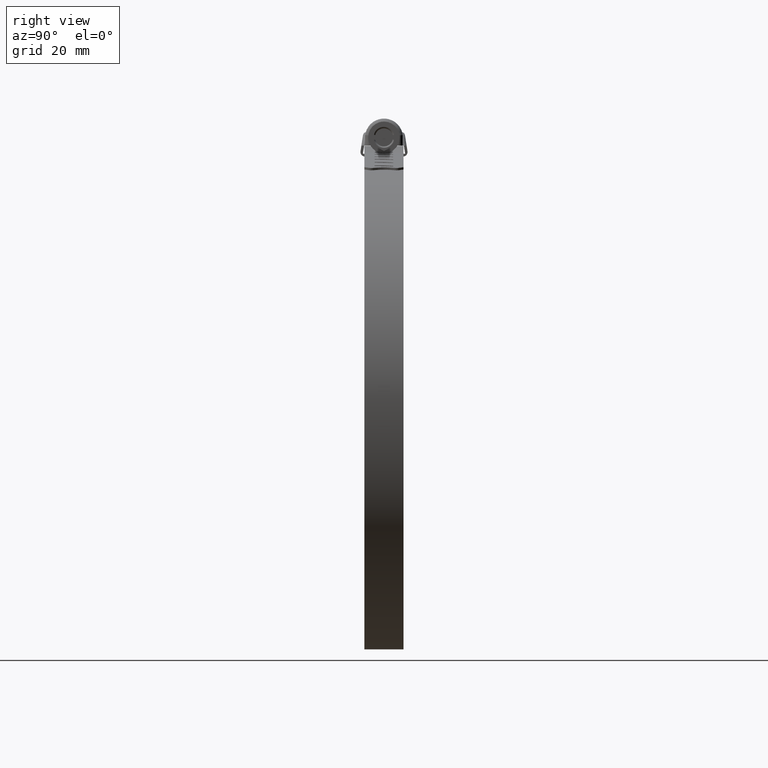
[diagram: clean part render]
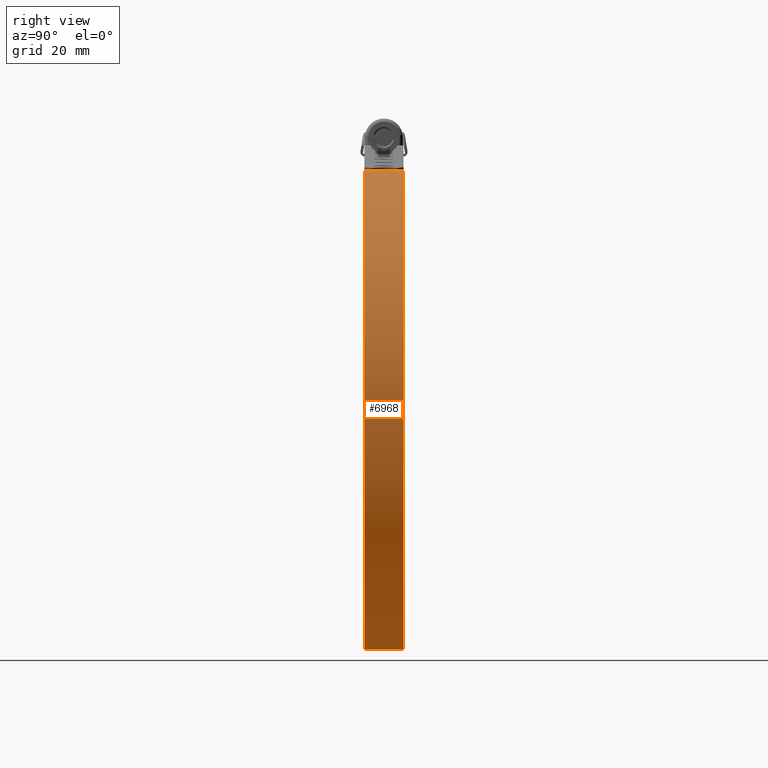
[diagram: same view with one face highlighted and labeled with its STEP entity id]
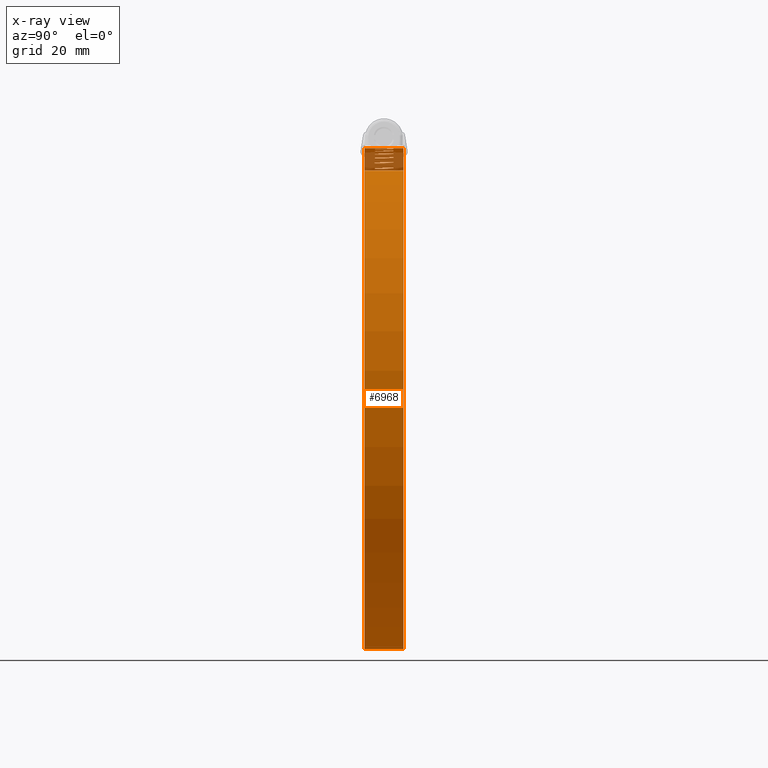
[diagram: x-ray of the same camera — body ghosted, the highlighted face saturated]
A machine part, right view. The second image highlights one B-rep face of the part: STEP entity #6968.
The next image is the same camera in x-ray: the body ghosted, the highlighted face saturated — about 4% of this face is hidden behind the body in this view.
In plain terms, the highlighted face is a freeform B-spline surface patch.
Its self-contained STEP definition (entity closure, byte-faithful):
#3632=CARTESIAN_POINT('',(-9.005521090665718,-0.095494000000085,11.891283086728960));
#3633=VERTEX_POINT('',#3632);
#3639=CARTESIAN_POINT('',(-9.005521090665729,-2.789311000000000,11.891283086729040));
#3640=VERTEX_POINT('',#3639);
#3641=CARTESIAN_POINT('',(-9.005521090665718,-0.095494000000085,11.891283086728960));
#3642=CARTESIAN_POINT('',(-9.005521090665729,-2.789311000000000,11.891283086729040));
#3643=QUASI_UNIFORM_CURVE('',1,(#3641,#3642),.UNSPECIFIED.,.F.,.U.);
#3644=EDGE_CURVE('',#3633,#3640,#3643,.T.);
#3668=CARTESIAN_POINT('',(-8.973533811599591,0.213521000000015,11.894755352408801));
#3669=VERTEX_POINT('',#3668);
#3675=CARTESIAN_POINT('',(-8.973533811599591,0.213521000000015,11.894755352408801));
#3676=CARTESIAN_POINT('',(-9.005521090665718,-0.095494000000085,11.891283086728960));
#3677=QUASI_UNIFORM_CURVE('',1,(#3675,#3676),.UNSPECIFIED.,.F.,.U.);
#3678=EDGE_CURVE('',#3669,#3633,#3677,.T.);
#3696=CARTESIAN_POINT('',(-8.408807953444731,2.910689000000000,11.954000164689500));
#3697=VERTEX_POINT('',#3696);
#3703=CARTESIAN_POINT('',(-8.408807953444731,2.910689000000000,11.954000164689500));
#3704=CARTESIAN_POINT('',(-8.973533811599591,0.213521000000015,11.894755352408801));
#3705=QUASI_UNIFORM_CURVE('',1,(#3703,#3704),.UNSPECIFIED.,.F.,.U.);
#3706=EDGE_CURVE('',#3697,#3669,#3705,.T.);
#3737=CARTESIAN_POINT('',(-7.818189438219370,2.848222999999960,12.011802170090560));
#3738=VERTEX_POINT('',#3737);
#3744=CARTESIAN_POINT('',(-8.079022681245414,3.209040462578904,11.986798964499490));
#3745=VERTEX_POINT('',#3744);
#3746=CARTESIAN_POINT('',(-7.818189438219370,2.848222999999960,12.011802170090560));
#3747=CARTESIAN_POINT('',(-7.807261453522706,2.899407474779917,12.012961290092010));
#3748=CARTESIAN_POINT('',(-7.813483438245870,3.018589940913636,12.012550937718959));
#3749=CARTESIAN_POINT('',(-7.916300446553213,3.160854869627151,12.002695065055880));
#3750=CARTESIAN_POINT('',(-8.027209843027977,3.203648514802569,11.991877231846869));
#3751=CARTESIAN_POINT('',(-8.079022681245414,3.209040462578904,11.986798964499490));
#3752=B_SPLINE_CURVE_WITH_KNOTS('',3,(#3746,#3747,#3748,#3749,#3750,#3751),.UNSPECIFIED.,.F.,.U.,(4,1,1,4),(0.000002011996664,0.157180377981874,0.345756693231996,0.502935059217433),.UNSPECIFIED.);
#3753=EDGE_CURVE('',#3738,#3745,#3752,.T.);
#3755=CARTESIAN_POINT('',(-8.079022681245414,3.209040462578904,11.986798964499490));
#3756=CARTESIAN_POINT('',(-8.151722523079309,3.217216449762999,11.979695212806231));
#3757=CARTESIAN_POINT('',(-8.269599591275963,3.184586906626809,11.968098471597020));
#3758=CARTESIAN_POINT('',(-8.383639370590444,3.057197547021002,11.956715174539809));
#3759=CARTESIAN_POINT('',(-8.408932174650282,2.963059668692534,11.954077672685560));
#3760=CARTESIAN_POINT('',(-8.408807953444731,2.910689000000000,11.954000164689500));
#3761=B_SPLINE_CURVE_WITH_KNOTS('',3,(#3755,#3756,#3757,#3758,#3759,#3760),.UNSPECIFIED.,.F.,.U.,(4,1,1,4),(0.000002009660828,0.220066440936311,0.345756148985025,0.502934268162541),.UNSPECIFIED.);
#3762=EDGE_CURVE('',#3745,#3697,#3761,.T.);
#3795=CARTESIAN_POINT('',(-8.408807953444660,-2.789311000000000,11.954000164689839));
#3796=VERTEX_POINT('',#3795);
#3802=CARTESIAN_POINT('',(-8.408807953444660,-2.789311000000000,11.954000164689839));
#3803=CARTESIAN_POINT('',(-7.818189438219370,2.848222999999960,12.011802170090560));
#3804=QUASI_UNIFORM_CURVE('',1,(#3802,#3803),.UNSPECIFIED.,.F.,.U.);
#3805=EDGE_CURVE('',#3796,#3738,#3804,.T.);
#3835=CARTESIAN_POINT('',(-8.707222253225842,-3.089310998482472,11.923178751419909));
#3836=VERTEX_POINT('',#3835);
#3837=CARTESIAN_POINT('',(-9.005521090665729,-2.789311000000000,11.891283086729040));
#3838=CARTESIAN_POINT('',(-9.005615900475219,-2.838387878512775,11.891361982606639));
#3839=CARTESIAN_POINT('',(-8.978686186525385,-2.946443679791787,11.894388060269909));
#3840=CARTESIAN_POINT('',(-8.863485071285391,-3.062304152095266,11.906705967575370));
#3841=CARTESIAN_POINT('',(-8.756025268982851,-3.089388802909183,11.918049488631050));
#3842=CARTESIAN_POINT('',(-8.707222253225842,-3.089310998482472,11.923178751419909));
#3843=B_SPLINE_CURVE_WITH_KNOTS('',3,(#3837,#3838,#3839,#3840,#3841,#3842),.UNSPECIFIED.,.F.,.U.,(4,1,1,4),(0.000001367597186,0.147335225386582,0.324094470422657,0.471428365476197),.UNSPECIFIED.);
#3844=EDGE_CURVE('',#3640,#3836,#3843,.T.);
#3846=CARTESIAN_POINT('',(-8.707222253225842,-3.089310998482472,11.923178751419909));
#3847=CARTESIAN_POINT('',(-8.668178421075160,-3.089340155004514,11.927282476319951));
#3848=CARTESIAN_POINT('',(-8.580280609149476,-3.071768054595512,11.936489091766100));
#3849=CARTESIAN_POINT('',(-8.450910806054960,-2.975438293921469,11.949911986975710));
#3850=CARTESIAN_POINT('',(-8.408448253410970,-2.858128693499273,11.954162575078950));
#3851=CARTESIAN_POINT('',(-8.408807953444660,-2.789311000000000,11.954000164689839));
#3852=B_SPLINE_CURVE_WITH_KNOTS('',3,(#3846,#3847,#3848,#3849,#3850,#3851),.UNSPECIFIED.,.F.,.U.,(4,1,1,4),(0.000001325429710,0.117858449666799,0.265160414500037,0.471429797483400),.UNSPECIFIED.);
#3853=EDGE_CURVE('',#3836,#3796,#3852,.T.);
#3886=CARTESIAN_POINT('',(-14.044262086994920,-0.095494000000085,11.187048517218100));
#3887=VERTEX_POINT('',#3886);
#3893=CARTESIAN_POINT('',(-14.044262086994941,-2.789311000000000,11.187048517218081));
#3894=VERTEX_POINT('',#3893);
#3895=CARTESIAN_POINT('',(-14.044262086994920,-0.095494000000085,11.187048517218100));
#3896=CARTESIAN_POINT('',(-14.044262086994941,-2.789311000000000,11.187048517218081));
#3897=QUASI_UNIFORM_CURVE('',1,(#3895,#3896),.UNSPECIFIED.,.F.,.U.);
#3898=EDGE_CURVE('',#3887,#3894,#3897,.T.);
#3922=CARTESIAN_POINT('',(-14.012546447400799,0.213521000000015,11.192467083092961));
#3923=VERTEX_POINT('',#3922);
#3929=CARTESIAN_POINT('',(-14.012546447400799,0.213521000000015,11.192467083092961));
#3930=CARTESIAN_POINT('',(-14.044262086994920,-0.095494000000085,11.187048517218100));
#3931=QUASI_UNIFORM_CURVE('',1,(#3929,#3930),.UNSPECIFIED.,.F.,.U.);
#3932=EDGE_CURVE('',#3923,#3887,#3931,.T.);
#3950=CARTESIAN_POINT('',(-13.452490726072581,2.910689000000000,11.286077080734479));
#3951=VERTEX_POINT('',#3950);
#3957=CARTESIAN_POINT('',(-13.452490726072581,2.910689000000000,11.286077080734479));
#3958=CARTESIAN_POINT('',(-14.012546447400799,0.213521000000015,11.192467083092961));
#3959=QUASI_UNIFORM_CURVE('',1,(#3957,#3958),.UNSPECIFIED.,.F.,.U.);
#3960=EDGE_CURVE('',#3951,#3923,#3959,.T.);
#3991=CARTESIAN_POINT('',(-12.866502561445779,2.848222999999960,11.379827671520401));
#3992=VERTEX_POINT('',#3991);
#3998=CARTESIAN_POINT('',(-13.125322888710400,3.209040462578904,11.338947613399140));
#3999=VERTEX_POINT('',#3998);
#4000=CARTESIAN_POINT('',(-12.866502561445779,2.848222999999960,11.379827671520401));
#4001=CARTESIAN_POINT('',(-12.855672046474361,2.899393230125994,11.381650729019540));
#4002=CARTESIAN_POINT('',(-12.861834154075011,3.018605020527343,11.380865071217940));
#4003=CARTESIAN_POINT('',(-12.963899722456480,3.160853024546785,11.364743988335521));
#4004=CARTESIAN_POINT('',(-13.073902436249000,3.203649613320435,11.347181797407339));
#4005=CARTESIAN_POINT('',(-13.125322888710400,3.209040462578904,11.338947613399140));
#4006=B_SPLINE_CURVE_WITH_KNOTS('',3,(#4000,#4001,#4002,#4003,#4004,#4005),.UNSPECIFIED.,.F.,.U.,(4,1,1,4),(0.000002011996712,0.157180377981921,0.345756693232046,0.502935059217494),.UNSPECIFIED.);
#4007=EDGE_CURVE('',#3992,#3999,#4006,.T.);
#4009=CARTESIAN_POINT('',(-13.125322888710400,3.209040462578904,11.338947613399140));
#4010=CARTESIAN_POINT('',(-13.176707455039240,3.214605178164895,11.330734304275889));
#4011=CARTESIAN_POINT('',(-13.293140586566990,3.195972053982962,11.312069715980609));
#4012=CARTESIAN_POINT('',(-13.422084994658780,3.078259316114484,11.291232000176921));
#4013=CARTESIAN_POINT('',(-13.452610188822749,2.963087921146077,11.286148391006281));
#4014=CARTESIAN_POINT('',(-13.452490726072581,2.910689000000000,11.286077080734479));
#4015=B_SPLINE_CURVE_WITH_KNOTS('',3,(#4009,#4010,#4011,#4012,#4013,#4014),.UNSPECIFIED.,.F.,.U.,(4,1,1,4),(0.000002009660718,0.157180129503391,0.345756148984949,0.502934268162437),.UNSPECIFIED.);
#4016=EDGE_CURVE('',#3999,#3951,#4015,.T.);
#4049=CARTESIAN_POINT('',(-13.452490726072501,-2.789311000000000,11.286077080734479));
#4050=VERTEX_POINT('',#4049);
#4056=CARTESIAN_POINT('',(-13.452490726072501,-2.789311000000000,11.286077080734479));
#4057=CARTESIAN_POINT('',(-12.866502561445779,2.848222999999960,11.379827671520401));
#4058=QUASI_UNIFORM_CURVE('',1,(#4056,#4057),.UNSPECIFIED.,.F.,.U.);
#4059=EDGE_CURVE('',#4050,#3992,#4058,.T.);
#4089=CARTESIAN_POINT('',(-13.748466820764380,-3.089310998482472,11.237095398435590));
#4090=VERTEX_POINT('',#4089);
#4091=CARTESIAN_POINT('',(-14.044262086994941,-2.789311000000000,11.187048517218081));
#4092=CARTESIAN_POINT('',(-14.044652244468001,-2.858121000526514,11.187108858144111));
#4093=CARTESIAN_POINT('',(-14.002608261618610,-2.975455833821752,11.194358833784049));
#4094=CARTESIAN_POINT('',(-13.874343159567180,-3.071751812060301,11.215998864489670));
#4095=CARTESIAN_POINT('',(-13.787182755005650,-3.089342466082533,11.230616630426850));
#4096=CARTESIAN_POINT('',(-13.748466820764380,-3.089310998482472,11.237095398435590));
#4097=B_SPLINE_CURVE_WITH_KNOTS('',3,(#4091,#4092,#4093,#4094,#4095,#4096),.UNSPECIFIED.,.F.,.U.,(4,1,1,4),(0.000001367597460,0.206270074267406,0.353571580110242,0.471428365476143),.UNSPECIFIED.);
#4098=EDGE_CURVE('',#3894,#4090,#4097,.T.);
#4100=CARTESIAN_POINT('',(-13.748466820764380,-3.089310998482472,11.237095398435590));
#4101=CARTESIAN_POINT('',(-13.709741719204260,-3.089342691705465,11.243575815819749));
#4102=CARTESIAN_POINT('',(-13.632309817796660,-3.073677862990182,11.256504871905831));
#4103=CARTESIAN_POINT('',(-13.500712745761810,-2.984840226071862,11.278364472591390));
#4104=CARTESIAN_POINT('',(-13.451932345580030,-2.868063236844275,11.286314304666240));
#4105=CARTESIAN_POINT('',(-13.452490726072501,-2.789311000000000,11.286077080734479));
#4106=B_SPLINE_CURVE_WITH_KNOTS('',3,(#4100,#4101,#4102,#4103,#4104,#4105),.UNSPECIFIED.,.F.,.U.,(4,1,1,4),(0.000001325429664,0.117858449666749,0.235715549342106,0.471429797483434),.UNSPECIFIED.);
#4107=EDGE_CURVE('',#4090,#4050,#4106,.T.);
#4140=CARTESIAN_POINT('',(-19.030612323707452,-0.095494000000085,10.176519708217359));
#4141=VERTEX_POINT('',#4140);
#4147=CARTESIAN_POINT('',(-19.030612323707452,-2.789311000000000,10.176519708217540));
#4148=VERTEX_POINT('',#4147);
#4149=CARTESIAN_POINT('',(-19.030612323707452,-0.095494000000085,10.176519708217359));
#4150=CARTESIAN_POINT('',(-19.030612323707452,-2.789311000000000,10.176519708217540));
#4151=QUASI_UNIFORM_CURVE('',1,(#4149,#4150),.UNSPECIFIED.,.F.,.U.);
#4152=EDGE_CURVE('',#4141,#4148,#4151,.T.);
#4176=CARTESIAN_POINT('',(-18.999286635707399,0.213521000000015,10.183864360852599));
#4177=VERTEX_POINT('',#4176);
#4183=CARTESIAN_POINT('',(-18.999286635707399,0.213521000000015,10.183864360852599));
#4184=CARTESIAN_POINT('',(-19.030612323707452,-0.095494000000085,10.176519708217359));
#4185=QUASI_UNIFORM_CURVE('',1,(#4183,#4184),.UNSPECIFIED.,.F.,.U.);
#4186=EDGE_CURVE('',#4177,#4141,#4185,.T.);
#4204=CARTESIAN_POINT('',(-18.445990284836299,2.910689000000000,10.311490340823900));
#4205=VERTEX_POINT('',#4204);
#4211=CARTESIAN_POINT('',(-18.445990284836299,2.910689000000000,10.311490340823900));
#4212=CARTESIAN_POINT('',(-18.999286635707399,0.213521000000015,10.183864360852599));
#4213=QUASI_UNIFORM_CURVE('',1,(#4211,#4212),.UNSPECIFIED.,.F.,.U.);
#4214=EDGE_CURVE('',#4205,#4177,#4213,.T.);
#4245=CARTESIAN_POINT('',(-17.866818442906851,2.848222999999960,10.440839789494779));
#4246=VERTEX_POINT('',#4245);
#4252=CARTESIAN_POINT('',(-18.122660350244111,3.209040462578906,10.384235377941099));
#4253=VERTEX_POINT('',#4252);
#4254=CARTESIAN_POINT('',(-17.866818442906851,2.848222999999960,10.440839789494779));
#4255=CARTESIAN_POINT('',(-17.860460179354259,2.878913726949419,10.442314599664421));
#4256=CARTESIAN_POINT('',(-17.856005452931889,2.963732823551710,10.443456542899799));
#4257=CARTESIAN_POINT('',(-17.897723495514221,3.074899438274182,10.434316334360950));
#4258=CARTESIAN_POINT('',(-17.992903147979970,3.172410881289877,10.413195042675380));
#4259=CARTESIAN_POINT('',(-18.071816893486041,3.203677174961872,10.395598225301660));
#4260=CARTESIAN_POINT('',(-18.122660350244111,3.209040462578906,10.384235377941099));
#4261=B_SPLINE_CURVE_WITH_KNOTS('',3,(#4254,#4255,#4256,#4257,#4258,#4259,#4260),.UNSPECIFIED.,.F.,.U.,(4,1,1,1,4),(0.000002011996262,0.094290169621297,0.251468535537760,0.345756693231922,0.502935059217427),.UNSPECIFIED.);
#4262=EDGE_CURVE('',#4246,#4253,#4261,.T.);
#4264=CARTESIAN_POINT('',(-18.122660350244111,3.209040462578906,10.384235377941099));
#4265=CARTESIAN_POINT('',(-18.173529969062901,3.214651267067050,10.372882130959830));
#4266=CARTESIAN_POINT('',(-18.277905221405781,3.197545758292637,10.349537353969190));
#4267=CARTESIAN_POINT('',(-18.409390135077409,3.088468716778165,10.319976345207930));
#4268=CARTESIAN_POINT('',(-18.446292912723511,2.973595036049047,10.311532579184350));
#4269=CARTESIAN_POINT('',(-18.445990284836299,2.910689000000000,10.311490340823900));
#4270=B_SPLINE_CURVE_WITH_KNOTS('',3,(#4264,#4265,#4266,#4267,#4268,#4269),.UNSPECIFIED.,.F.,.U.,(4,1,1,4),(0.000002009660685,0.157180129503410,0.314306305858774,0.502934268162573),.UNSPECIFIED.);
#4271=EDGE_CURVE('',#4253,#4205,#4270,.T.);
#4304=CARTESIAN_POINT('',(-18.445990284836199,-2.789311000000000,10.311490340823900));
#4305=VERTEX_POINT('',#4304);
#4311=CARTESIAN_POINT('',(-18.445990284836199,-2.789311000000000,10.311490340823900));
#4312=CARTESIAN_POINT('',(-17.866818442906851,2.848222999999960,10.440839789494779));
#4313=QUASI_UNIFORM_CURVE('',1,(#4311,#4312),.UNSPECIFIED.,.F.,.U.);
#4314=EDGE_CURVE('',#4305,#4246,#4313,.T.);
#4344=CARTESIAN_POINT('',(-18.738424064280910,-3.089310998482472,10.244531110917700));
#4345=VERTEX_POINT('',#4344);
#4346=CARTESIAN_POINT('',(-19.030612323707452,-2.789311000000000,10.176519708217540));
#4347=CARTESIAN_POINT('',(-19.031007570900790,-2.858128340064081,10.176555639008310));
#4348=CARTESIAN_POINT('',(-18.989473983154880,-2.975437686346211,10.186361221793801));
#4349=CARTESIAN_POINT('',(-18.862782026371111,-3.071768760031074,10.215788393442031));
#4350=CARTESIAN_POINT('',(-18.776676949033170,-3.089338552511964,10.235699787519620));
#4351=CARTESIAN_POINT('',(-18.738424064280910,-3.089310998482472,10.244531110917700));
#4352=B_SPLINE_CURVE_WITH_KNOTS('',3,(#4346,#4347,#4348,#4349,#4350,#4351),.UNSPECIFIED.,.F.,.U.,(4,1,1,4),(0.000001367597470,0.206270074267385,0.353571580110219,0.471428365476101),.UNSPECIFIED.);
#4353=EDGE_CURVE('',#4148,#4345,#4352,.T.);
#4355=CARTESIAN_POINT('',(-18.738424064280910,-3.089310998482472,10.244531110917700));
#4356=CARTESIAN_POINT('',(-18.700175734856909,-3.089343467343626,10.253361493538470));
#4357=CARTESIAN_POINT('',(-18.614055725823530,-3.071752560121901,10.273211354595871));
#4358=CARTESIAN_POINT('',(-18.487272906360321,-2.975455743188903,10.302303509345400));
#4359=CARTESIAN_POINT('',(-18.445654316548971,-2.858121225010708,10.311695072860710));
#4360=CARTESIAN_POINT('',(-18.445990284836199,-2.789311000000000,10.311490340823900));
#4361=B_SPLINE_CURVE_WITH_KNOTS('',3,(#4355,#4356,#4357,#4358,#4359,#4360),.UNSPECIFIED.,.F.,.U.,(4,1,1,4),(0.000001325429899,0.117858449666897,0.265160414500117,0.471429797483498),.UNSPECIFIED.);
#4362=EDGE_CURVE('',#4345,#4305,#4361,.T.);
#4395=CARTESIAN_POINT('',(-23.945970704141850,-0.095494000000085,8.863466339585321));
#4396=VERTEX_POINT('',#4395);
#4402=CARTESIAN_POINT('',(-23.945970704141899,-2.789311000000000,8.863466339585459));
#4403=VERTEX_POINT('',#4402);
#4404=CARTESIAN_POINT('',(-23.945970704141850,-0.095494000000085,8.863466339585321));
#4405=CARTESIAN_POINT('',(-23.945970704141899,-2.789311000000000,8.863466339585459));
#4406=QUASI_UNIFORM_CURVE('',1,(#4404,#4405),.UNSPECIFIED.,.F.,.U.);
#4407=EDGE_CURVE('',#4396,#4403,#4406,.T.);
#4431=CARTESIAN_POINT('',(-23.915151825181251,0.213521000000015,8.872709680464830));
#4432=VERTEX_POINT('',#4431);
#4438=CARTESIAN_POINT('',(-23.915151825181251,0.213521000000015,8.872709680464830));
#4439=CARTESIAN_POINT('',(-23.945970704141850,-0.095494000000085,8.863466339585321));
#4440=QUASI_UNIFORM_CURVE('',1,(#4438,#4439),.UNSPECIFIED.,.F.,.U.);
#4441=EDGE_CURVE('',#4432,#4396,#4440,.T.);
#4459=CARTESIAN_POINT('',(-23.370678863220999,2.910689000000000,9.033875546408000));
#4460=VERTEX_POINT('',#4459);
#4466=CARTESIAN_POINT('',(-23.370678863220999,2.910689000000000,9.033875546408000));
#4467=CARTESIAN_POINT('',(-23.915151825181251,0.213521000000015,8.872709680464830));
#4468=QUASI_UNIFORM_CURVE('',1,(#4466,#4467),.UNSPECIFIED.,.F.,.U.);
#4469=EDGE_CURVE('',#4460,#4432,#4468,.T.);
#4500=CARTESIAN_POINT('',(-22.800483888456100,2.848222999999960,9.198341327372448));
#4501=VERTEX_POINT('',#4500);
#4507=CARTESIAN_POINT('',(-23.052392982407309,3.209040462578904,9.126223719661866));
#4508=VERTEX_POINT('',#4507);
#4509=CARTESIAN_POINT('',(-22.800483888456100,2.848222999999960,9.198341327372448));
#4510=CARTESIAN_POINT('',(-22.785309317948240,2.920039352355272,9.202848648755282));
#4511=CARTESIAN_POINT('',(-22.802956105758369,3.030145860864355,9.197944529464873));
#4512=CARTESIAN_POINT('',(-22.905670781019861,3.162069561697294,9.168512441849416));
#4513=CARTESIAN_POINT('',(-22.992212641508349,3.202736749750375,9.143591677640474));
#4514=CARTESIAN_POINT('',(-23.052392982407309,3.209040462578904,9.126223719661866));
#4515=B_SPLINE_CURVE_WITH_KNOTS('',3,(#4509,#4510,#4511,#4512,#4513,#4514),.UNSPECIFIED.,.F.,.U.,(4,1,1,4),(0.000002011996754,0.220066787263811,0.314306800510879,0.502935059217317),.UNSPECIFIED.);
#4516=EDGE_CURVE('',#4501,#4508,#4515,.T.);
#4518=CARTESIAN_POINT('',(-23.052392982407309,3.209040462578904,9.126223719661866));
#4519=CARTESIAN_POINT('',(-23.122580963322260,3.217263508786169,9.105990493054920));
#4520=CARTESIAN_POINT('',(-23.236382231513058,3.184559591182305,9.073103130126071));
#4521=CARTESIAN_POINT('',(-23.346404309112579,3.057180434902383,9.041138074898445));
#4522=CARTESIAN_POINT('',(-23.370838484914771,2.963082848492362,9.033922422423295));
#4523=CARTESIAN_POINT('',(-23.370678863220999,2.910689000000000,9.033875546408000));
#4524=B_SPLINE_CURVE_WITH_KNOTS('',3,(#4518,#4519,#4520,#4521,#4522,#4523),.UNSPECIFIED.,.F.,.U.,(4,1,1,4),(0.000002009660742,0.220066440936314,0.345756148985138,0.502934268162744),.UNSPECIFIED.);
#4525=EDGE_CURVE('',#4508,#4460,#4524,.T.);
#4559=CARTESIAN_POINT('',(-23.370678863220750,-2.789311000000000,9.033875546407440));
#4560=VERTEX_POINT('',#4559);
#4566=CARTESIAN_POINT('',(-23.370678863220750,-2.789311000000000,9.033875546407440));
#4567=CARTESIAN_POINT('',(-22.800483888456100,2.848222999999960,9.198341327372448));
#4568=QUASI_UNIFORM_CURVE('',1,(#4566,#4567),.UNSPECIFIED.,.F.,.U.);
#4569=EDGE_CURVE('',#4560,#4501,#4568,.T.);
#4599=CARTESIAN_POINT('',(-23.658479431524579,-3.089310998482473,8.949188553817212));
#4600=VERTEX_POINT('',#4599);
#4601=CARTESIAN_POINT('',(-23.945970704141899,-2.789311000000000,8.863466339585459));
#4602=CARTESIAN_POINT('',(-23.946365307149399,-2.858121000526499,8.863478682504288));
#4603=CARTESIAN_POINT('',(-23.905518263543520,-2.975455833821773,8.875798490509176));
#4604=CARTESIAN_POINT('',(-23.780846486445931,-3.071751812060287,8.912908803476162));
#4605=CARTESIAN_POINT('',(-23.696117219859641,-3.089342466082511,8.938039792077488));
#4606=CARTESIAN_POINT('',(-23.658479431524579,-3.089310998482473,8.949188553817212));
#4607=B_SPLINE_CURVE_WITH_KNOTS('',3,(#4601,#4602,#4603,#4604,#4605,#4606),.UNSPECIFIED.,.F.,.U.,(4,1,1,4),(0.000001367597301,0.206270074267284,0.353571580110168,0.471428365476071),.UNSPECIFIED.);
#4608=EDGE_CURVE('',#4403,#4600,#4607,.T.);
#4610=CARTESIAN_POINT('',(-23.658479431524579,-3.089310998482473,8.949188553817212));
#4611=CARTESIAN_POINT('',(-23.620848018561041,-3.089348039637219,8.960335555724592));
#4612=CARTESIAN_POINT('',(-23.536081604307508,-3.071760170568090,8.985411480355992));
#4613=CARTESIAN_POINT('',(-23.411337351422620,-2.975443024635984,9.022181521575218));
#4614=CARTESIAN_POINT('',(-23.370351736189889,-2.858127756524960,9.034101688191544));
#4615=CARTESIAN_POINT('',(-23.370678863220750,-2.789311000000000,9.033875546407440));
#4616=B_SPLINE_CURVE_WITH_KNOTS('',3,(#4610,#4611,#4612,#4613,#4614,#4615),.UNSPECIFIED.,.F.,.U.,(4,1,1,4),(0.000001325429741,0.117858449666844,0.265160414500101,0.471429797483540),.UNSPECIFIED.);
#4617=EDGE_CURVE('',#4600,#4560,#4616,.T.);
#4650=CARTESIAN_POINT('',(-28.772000959881701,-0.095494000000085,7.252786629752710));
#4651=VERTEX_POINT('',#4650);
#4657=CARTESIAN_POINT('',(-28.772000959881751,-2.789311000000000,7.252786629752820));
#4658=VERTEX_POINT('',#4657);
#4659=CARTESIAN_POINT('',(-28.772000959881701,-0.095494000000085,7.252786629752710));
#4660=CARTESIAN_POINT('',(-28.772000959881751,-2.789311000000000,7.252786629752820));
#4661=QUASI_UNIFORM_CURVE('',1,(#4659,#4660),.UNSPECIFIED.,.F.,.U.);
#4662=EDGE_CURVE('',#4651,#4658,#4661,.T.);
#4686=CARTESIAN_POINT('',(-28.741803856803902,0.213521000000015,7.263894177489070));
#4687=VERTEX_POINT('',#4686);
#4693=CARTESIAN_POINT('',(-28.741803856803902,0.213521000000015,7.263894177489070));
#4694=CARTESIAN_POINT('',(-28.772000959881701,-0.095494000000085,7.252786629752710));
#4695=QUASI_UNIFORM_CURVE('',1,(#4693,#4694),.UNSPECIFIED.,.F.,.U.);
#4696=EDGE_CURVE('',#4687,#4651,#4695,.T.);
#4714=CARTESIAN_POINT('',(-28.208185387410150,2.910689000000000,7.457998715748150));
#4715=VERTEX_POINT('',#4714);
#4721=CARTESIAN_POINT('',(-28.208185387410150,2.910689000000000,7.457998715748150));
#4722=CARTESIAN_POINT('',(-28.741803856803902,0.213521000000015,7.263894177489070));
#4723=QUASI_UNIFORM_CURVE('',1,(#4721,#4722),.UNSPECIFIED.,.F.,.U.);
#4724=EDGE_CURVE('',#4715,#4687,#4723,.T.);
#4755=CARTESIAN_POINT('',(-27.649094336943399,2.848222999999960,7.656967305338190));
#4756=VERTEX_POINT('',#4755);
#4762=CARTESIAN_POINT('',(-27.896130895029358,3.209040462578906,7.569605529222124));
#4763=VERTEX_POINT('',#4762);
#4764=CARTESIAN_POINT('',(-27.649094336943399,2.848222999999960,7.656967305338190));
#4765=CARTESIAN_POINT('',(-27.640852286474200,2.889195787809631,7.659976263534665));
#4766=CARTESIAN_POINT('',(-27.640949057653049,2.974831834221832,7.660094040857644));
#4767=CARTESIAN_POINT('',(-27.686090790282371,3.082403174188928,7.644204188520545));
#4768=CARTESIAN_POINT('',(-27.770876975243080,3.172402691972641,7.614160322282081));
#4769=CARTESIAN_POINT('',(-27.847047491886190,3.203683853005064,7.587081271323699));
#4770=CARTESIAN_POINT('',(-27.896130895029358,3.209040462578906,7.569605529222124));
#4771=B_SPLINE_CURVE_WITH_KNOTS('',3,(#4764,#4765,#4766,#4767,#4768,#4769,#4770),.UNSPECIFIED.,.F.,.U.,(4,1,1,1,4),(0.000002011996850,0.125735273748925,0.251468535537833,0.345756693231842,0.502935059217196),.UNSPECIFIED.);
#4772=EDGE_CURVE('',#4756,#4763,#4771,.T.);
#4774=CARTESIAN_POINT('',(-27.896130895029358,3.209040462578906,7.569605529222124));
#4775=CARTESIAN_POINT('',(-27.955062263162379,3.215920690006656,7.548642984881589));
#4776=CARTESIAN_POINT('',(-28.046050325995662,3.194879376954811,7.516220243243478));
#4777=CARTESIAN_POINT('',(-28.170350851490280,3.088130530388160,7.471785825797427));
#4778=CARTESIAN_POINT('',(-28.208670746479299,2.984194941294312,7.457958922356608));
#4779=CARTESIAN_POINT('',(-28.208185387410150,2.910689000000000,7.457998715748150));
#4780=B_SPLINE_CURVE_WITH_KNOTS('',3,(#4774,#4775,#4776,#4777,#4778,#4779),.UNSPECIFIED.,.F.,.U.,(4,1,1,4),(0.000002009660907,0.188629973229830,0.282869839029870,0.502934268163003),.UNSPECIFIED.);
#4781=EDGE_CURVE('',#4763,#4715,#4780,.T.);
#4814=CARTESIAN_POINT('',(-28.208185387410051,-2.789311000000000,7.457998715748040));
#4815=VERTEX_POINT('',#4814);
#4821=CARTESIAN_POINT('',(-28.208185387410051,-2.789311000000000,7.457998715748040));
#4822=CARTESIAN_POINT('',(-27.649094336943399,2.848222999999960,7.656967305338190));
#4823=QUASI_UNIFORM_CURVE('',1,(#4821,#4822),.UNSPECIFIED.,.F.,.U.);
#4824=EDGE_CURVE('',#4815,#4756,#4823,.T.);
#4854=CARTESIAN_POINT('',(-28.490279132423769,-3.089310998482472,7.355899877097826));
#4855=VERTEX_POINT('',#4854);
#4856=CARTESIAN_POINT('',(-28.772000959881751,-2.789311000000000,7.252786629752820));
#4857=CARTESIAN_POINT('',(-28.772055366310941,-2.828574419582517,7.252842067623550));
#4858=CARTESIAN_POINT('',(-28.757383969961289,-2.907077966650937,7.258332454943632));
#4859=CARTESIAN_POINT('',(-28.673986580816450,-3.040478141321422,7.288942255974265));
#4860=CARTESIAN_POINT('',(-28.564282129489939,-3.089900133039259,7.328966117847602));
#4861=CARTESIAN_POINT('',(-28.490279132423769,-3.089310998482472,7.355899877097826));
#4862=B_SPLINE_CURVE_WITH_KNOTS('',3,(#4856,#4857,#4858,#4859,#4860,#4861),.UNSPECIFIED.,.F.,.U.,(4,1,1,4),(0.000001367597236,0.117858117930188,0.235714829455536,0.471428365476392),.UNSPECIFIED.);
#4863=EDGE_CURVE('',#4658,#4855,#4862,.T.);
#4865=CARTESIAN_POINT('',(-28.490279132423769,-3.089310998482472,7.355899877097826));
#4866=CARTESIAN_POINT('',(-28.453392053179289,-3.089343467343615,7.369325738178821));
#4867=CARTESIAN_POINT('',(-28.370333059167731,-3.071752560121906,7.399523030336815));
#4868=CARTESIAN_POINT('',(-28.248040701412940,-2.975455743188907,7.443849275539331));
#4869=CARTESIAN_POINT('',(-28.207876873938371,-2.858121225010611,7.458242865977906));
#4870=CARTESIAN_POINT('',(-28.208185387410051,-2.789311000000000,7.457998715748040));
#4871=B_SPLINE_CURVE_WITH_KNOTS('',3,(#4865,#4866,#4867,#4868,#4869,#4870),.UNSPECIFIED.,.F.,.U.,(4,1,1,4),(0.000001325429922,0.117858449666871,0.265160414499946,0.471429797483123),.UNSPECIFIED.);
#4872=EDGE_CURVE('',#4855,#4815,#4871,.T.);
#4905=CARTESIAN_POINT('',(-33.490700052428750,-0.095494000000085,5.350489063392760));
#4906=VERTEX_POINT('',#4905);
#4912=CARTESIAN_POINT('',(-33.490700052428700,-2.789311000000000,5.350489063392860));
#4913=VERTEX_POINT('',#4912);
#4914=CARTESIAN_POINT('',(-33.490700052428750,-0.095494000000085,5.350489063392760));
#4915=CARTESIAN_POINT('',(-33.490700052428700,-2.789311000000000,5.350489063392860));
#4916=QUASI_UNIFORM_CURVE('',1,(#4914,#4915),.UNSPECIFIED.,.F.,.U.);
#4917=EDGE_CURVE('',#4906,#4913,#4916,.T.);
#4941=CARTESIAN_POINT('',(-33.461237372602262,0.213521000000015,5.363419382354520));
#4942=VERTEX_POINT('',#4941);
#4948=CARTESIAN_POINT('',(-33.461237372602262,0.213521000000015,5.363419382354520));
#4949=CARTESIAN_POINT('',(-33.490700052428750,-0.095494000000085,5.350489063392760));
#4950=QUASI_UNIFORM_CURVE('',1,(#4948,#4949),.UNSPECIFIED.,.F.,.U.);
#4951=EDGE_CURVE('',#4942,#4906,#4950,.T.);
#4969=CARTESIAN_POINT('',(-32.940464007797608,2.910689000000000,5.589738504747750));
#4970=VERTEX_POINT('',#4969);
#4976=CARTESIAN_POINT('',(-32.940464007797608,2.910689000000000,5.589738504747750));
#4977=CARTESIAN_POINT('',(-33.461237372602262,0.213521000000015,5.363419382354520));
#4978=QUASI_UNIFORM_CURVE('',1,(#4976,#4977),.UNSPECIFIED.,.F.,.U.);
#4979=EDGE_CURVE('',#4970,#4942,#4978,.T.);
#5010=CARTESIAN_POINT('',(-32.394562516648463,2.848222999999960,5.822467669908951));
#5011=VERTEX_POINT('',#5010);
#5017=CARTESIAN_POINT('',(-32.635804992913322,3.209040462578906,5.720187620032424));
#5018=VERTEX_POINT('',#5017);
#5019=CARTESIAN_POINT('',(-32.394562516648463,2.848222999999960,5.822467669908951));
#5020=CARTESIAN_POINT('',(-32.384493130475313,2.899406127163056,5.826857428810321));
#5021=CARTESIAN_POINT('',(-32.390287798540257,3.018581778681817,5.824601874816951));
#5022=CARTESIAN_POINT('',(-32.485414861440177,3.160864944689937,5.784270675126471));
#5023=CARTESIAN_POINT('',(-32.587905645908933,3.203645253647852,5.740616226884533));
#5024=CARTESIAN_POINT('',(-32.635804992913322,3.209040462578906,5.720187620032424));
#5025=B_SPLINE_CURVE_WITH_KNOTS('',3,(#5019,#5020,#5021,#5022,#5023,#5024),.UNSPECIFIED.,.F.,.U.,(4,1,1,4),(0.000002011996878,0.157180377981930,0.345756693231869,0.502935059217253),.UNSPECIFIED.);
#5026=EDGE_CURVE('',#5011,#5018,#5025,.T.);
#5028=CARTESIAN_POINT('',(-32.635804992913322,3.209040462578906,5.720187620032424));
#5029=CARTESIAN_POINT('',(-32.703032150050362,3.217269787217764,5.691539452178825));
#5030=CARTESIAN_POINT('',(-32.801987297102052,3.187517844723193,5.649293169820417));
#5031=CARTESIAN_POINT('',(-32.912287418119817,3.067485248978632,5.602042525211196));
#5032=CARTESIAN_POINT('',(-32.940776879310569,2.973612791463266,5.589721672881031));
#5033=CARTESIAN_POINT('',(-32.940464007797608,2.910689000000000,5.589738504747750));
#5034=B_SPLINE_CURVE_WITH_KNOTS('',3,(#5028,#5029,#5030,#5031,#5032,#5033),.UNSPECIFIED.,.F.,.U.,(4,1,1,4),(0.000002009660909,0.220066440936508,0.314306305859045,0.502934268162956),.UNSPECIFIED.);
#5035=EDGE_CURVE('',#5018,#4970,#5034,.T.);
#5068=CARTESIAN_POINT('',(-32.940464007797551,-2.789311000000000,5.589738504747980));
#5069=VERTEX_POINT('',#5068);
#5075=CARTESIAN_POINT('',(-32.940464007797551,-2.789311000000000,5.589738504747980));
#5076=CARTESIAN_POINT('',(-32.394562516648463,2.848222999999960,5.822467669908951));
#5077=QUASI_UNIFORM_CURVE('',1,(#5075,#5076),.UNSPECIFIED.,.F.,.U.);
#5078=EDGE_CURVE('',#5069,#5011,#5077,.T.);
#5108=CARTESIAN_POINT('',(-33.215798606125261,-3.089310998482472,5.470608689867546));
#5109=VERTEX_POINT('',#5108);
#5110=CARTESIAN_POINT('',(-33.490700052428700,-2.789311000000000,5.350489063392860));
#5111=CARTESIAN_POINT('',(-33.491093218348517,-2.858121000526537,5.350453224300042));
#5112=CARTESIAN_POINT('',(-33.452052049323903,-2.975455833821675,5.367659204708557));
#5113=CARTESIAN_POINT('',(-33.332832166222097,-3.071751812060351,5.419686570646294));
#5114=CARTESIAN_POINT('',(-33.251797155820569,-3.089342466082562,5.454956136755560));
#5115=CARTESIAN_POINT('',(-33.215798606125261,-3.089310998482472,5.470608689867546));
#5116=B_SPLINE_CURVE_WITH_KNOTS('',3,(#5110,#5111,#5112,#5113,#5114,#5115),.UNSPECIFIED.,.F.,.U.,(4,1,1,4),(0.000001367597519,0.206270074267495,0.353571580110293,0.471428365476248),.UNSPECIFIED.);
#5117=EDGE_CURVE('',#4913,#5109,#5116,.T.);
#5119=CARTESIAN_POINT('',(-33.215798606125261,-3.089310998482472,5.470608689867546));
#5120=CARTESIAN_POINT('',(-33.152696768031113,-3.089685038910780,5.498046884390918));
#5121=CARTESIAN_POINT('',(-33.045061338998522,-3.047020659347974,5.544764325725041));
#5122=CARTESIAN_POINT('',(-32.956658433912423,-2.916942827899518,5.582947583871699));
#5123=CARTESIAN_POINT('',(-32.940462890911363,-2.828565453333234,5.589816069856683));
#5124=CARTESIAN_POINT('',(-32.940464007797551,-2.789311000000000,5.589738504747980));
#5125=B_SPLINE_CURVE_WITH_KNOTS('',3,(#5119,#5120,#5121,#5122,#5123,#5124),.UNSPECIFIED.,.F.,.U.,(4,1,1,4),(0.000001325429720,0.206270690499878,0.353572661799066,0.471429797483274),.UNSPECIFIED.);
#5126=EDGE_CURVE('',#5109,#5069,#5125,.T.);
#5159=CARTESIAN_POINT('',(-38.084465331794547,-0.095494000000085,3.163669977351265));
#5160=VERTEX_POINT('',#5159);
#5166=CARTESIAN_POINT('',(-38.084465331794597,-2.789311000000000,3.163669977351400));
#5167=VERTEX_POINT('',#5166);
#5168=CARTESIAN_POINT('',(-38.084465331794547,-0.095494000000085,3.163669977351265));
#5169=CARTESIAN_POINT('',(-38.084465331794597,-2.789311000000000,3.163669977351400));
#5170=QUASI_UNIFORM_CURVE('',1,(#5168,#5169),.UNSPECIFIED.,.F.,.U.);
#5171=EDGE_CURVE('',#5160,#5167,#5170,.T.);
#5195=CARTESIAN_POINT('',(-38.055846982893399,0.213521000000015,3.178374832235820));
#5196=VERTEX_POINT('',#5195);
#5202=CARTESIAN_POINT('',(-38.055846982893399,0.213521000000015,3.178374832235820));
#5203=CARTESIAN_POINT('',(-38.084465331794547,-0.095494000000085,3.163669977351265));
#5204=QUASI_UNIFORM_CURVE('',1,(#5202,#5203),.UNSPECIFIED.,.F.,.U.);
#5205=EDGE_CURVE('',#5196,#5160,#5204,.T.);
#5223=CARTESIAN_POINT('',(-37.549861417281562,2.910689000000000,3.436064277195115));
#5224=VERTEX_POINT('',#5223);
#5230=CARTESIAN_POINT('',(-37.549861417281562,2.910689000000000,3.436064277195115));
#5231=CARTESIAN_POINT('',(-38.055846982893399,0.213521000000015,3.178374832235820));
#5232=QUASI_UNIFORM_CURVE('',1,(#5230,#5231),.UNSPECIFIED.,.F.,.U.);
#5233=EDGE_CURVE('',#5224,#5196,#5232,.T.);
#5264=CARTESIAN_POINT('',(-37.019185918095403,2.848222999999960,3.701685844314325));
#5265=VERTEX_POINT('',#5264);
#5271=CARTESIAN_POINT('',(-37.253734380844833,3.209040462578909,3.584869066498357));
#5272=VERTEX_POINT('',#5271);
#5273=CARTESIAN_POINT('',(-37.019185918095403,2.848222999999960,3.701685844314325));
#5274=CARTESIAN_POINT('',(-37.007279261249707,2.909688978264635,3.707765396423741));
#5275=CARTESIAN_POINT('',(-37.019075009058859,3.029921293464489,3.702081753012481));
#5276=CARTESIAN_POINT('',(-37.116732124936938,3.164680972870034,3.653414681567836));
#5277=CARTESIAN_POINT('',(-37.207105411609980,3.203674895995586,3.608216922530208));
#5278=CARTESIAN_POINT('',(-37.253734380844833,3.209040462578909,3.584869066498357));
#5279=B_SPLINE_CURVE_WITH_KNOTS('',3,(#5273,#5274,#5275,#5276,#5277,#5278),.UNSPECIFIED.,.F.,.U.,(4,1,1,4),(0.000002011996712,0.188630270702806,0.345756693232140,0.502935059217565),.UNSPECIFIED.);
#5280=EDGE_CURVE('',#5265,#5272,#5279,.T.);
#5282=CARTESIAN_POINT('',(-37.253734380844833,3.209040462578909,3.584869066498357));
#5283=CARTESIAN_POINT('',(-37.309666950502589,3.215923128699409,3.556883274854657));
#5284=CARTESIAN_POINT('',(-37.396040323720598,3.194876311546415,3.513606102863832));
#5285=CARTESIAN_POINT('',(-37.513982314435829,3.088132162321002,3.454362900280963));
#5286=CARTESIAN_POINT('',(-37.550341166581063,2.984194542235863,3.435964198790371));
#5287=CARTESIAN_POINT('',(-37.549861417281562,2.910689000000000,3.436064277195115));
#5288=B_SPLINE_CURVE_WITH_KNOTS('',3,(#5282,#5283,#5284,#5285,#5286,#5287),.UNSPECIFIED.,.F.,.U.,(4,1,1,4),(0.000002009660922,0.188629973229562,0.282869839029461,0.502934268162289),.UNSPECIFIED.);
#5289=EDGE_CURVE('',#5272,#5224,#5288,.T.);
#5323=CARTESIAN_POINT('',(-37.549861417281349,-2.789311000000000,3.436064277194785));
#5324=VERTEX_POINT('',#5323);
#5330=CARTESIAN_POINT('',(-37.549861417281349,-2.789311000000000,3.436064277194785));
#5331=CARTESIAN_POINT('',(-37.019185918095403,2.848222999999960,3.701685844314325));
#5332=QUASI_UNIFORM_CURVE('',1,(#5330,#5331),.UNSPECIFIED.,.F.,.U.);
#5333=EDGE_CURVE('',#5324,#5265,#5332,.T.);
#5363=CARTESIAN_POINT('',(-37.817409759868561,-3.089310998482472,3.300347888321914));
#5364=VERTEX_POINT('',#5363);
#5365=CARTESIAN_POINT('',(-38.084465331794597,-2.789311000000000,3.163669977351400));
#5366=CARTESIAN_POINT('',(-38.084855576456533,-2.858121000526509,3.163610202900511));
#5367=CARTESIAN_POINT('',(-38.046937627057360,-2.975455833821672,3.183167497037886));
#5368=CARTESIAN_POINT('',(-37.931116307775973,-3.071751812060266,3.242376021197325));
#5369=CARTESIAN_POINT('',(-37.852385599504721,-3.089342466082542,3.282526871492458));
#5370=CARTESIAN_POINT('',(-37.817409759868561,-3.089310998482472,3.300347888321914));
#5371=B_SPLINE_CURVE_WITH_KNOTS('',3,(#5365,#5366,#5367,#5368,#5369,#5370),.UNSPECIFIED.,.F.,.U.,(4,1,1,4),(0.000001367596833,0.206270074267196,0.353571580110208,0.471428365476133),.UNSPECIFIED.);
#5372=EDGE_CURVE('',#5167,#5364,#5371,.T.);
#5374=CARTESIAN_POINT('',(-37.817409759868561,-3.089310998482472,3.300347888321914));
#5375=CARTESIAN_POINT('',(-37.756092898482272,-3.089686462544542,3.331591148471146));
#5376=CARTESIAN_POINT('',(-37.651534198872831,-3.047012103063037,3.384780221889585));
#5377=CARTESIAN_POINT('',(-37.565597231515859,-2.916948289586391,3.428304434573904));
#5378=CARTESIAN_POINT('',(-37.549867989241143,-2.828569815472738,3.436140270751344));
#5379=CARTESIAN_POINT('',(-37.549861417281349,-2.789311000000000,3.436064277194785));
#5380=B_SPLINE_CURVE_WITH_KNOTS('',3,(#5374,#5375,#5376,#5377,#5378,#5379),.UNSPECIFIED.,.F.,.U.,(4,1,1,4),(0.000001325429887,0.206270690500048,0.353572661799223,0.471429797483391),.UNSPECIFIED.);
#5381=EDGE_CURVE('',#5364,#5324,#5380,.T.);
#5414=CARTESIAN_POINT('',(-42.536160201481998,-0.095494000000085,0.700487088448887));
#5415=VERTEX_POINT('',#5414);
#5421=CARTESIAN_POINT('',(-42.536160201482097,-2.789311000000000,0.700487088448942));
#5422=VERTEX_POINT('',#5421);
#5423=CARTESIAN_POINT('',(-42.536160201481998,-0.095494000000085,0.700487088448887));
#5424=CARTESIAN_POINT('',(-42.536160201482097,-2.789311000000000,0.700487088448942));
#5425=QUASI_UNIFORM_CURVE('',1,(#5423,#5424),.UNSPECIFIED.,.F.,.U.);
#5426=EDGE_CURVE('',#5415,#5422,#5425,.T.);
#5450=CARTESIAN_POINT('',(-42.508492941485251,0.213521000000015,0.716911624219385));
#5451=VERTEX_POINT('',#5450);
#5457=CARTESIAN_POINT('',(-42.508492941485251,0.213521000000015,0.716911624219385));
#5458=CARTESIAN_POINT('',(-42.536160201481998,-0.095494000000085,0.700487088448887));
#5459=QUASI_UNIFORM_CURVE('',1,(#5457,#5458),.UNSPECIFIED.,.F.,.U.);
#5460=EDGE_CURVE('',#5451,#5415,#5459,.T.);
#5478=CARTESIAN_POINT('',(-42.019182705216949,2.910689000000000,1.005010106225002));
#5479=VERTEX_POINT('',#5478);
#5485=CARTESIAN_POINT('',(-42.019182705216949,2.910689000000000,1.005010106225002));
#5486=CARTESIAN_POINT('',(-42.508492941485251,0.213521000000015,0.716911624219385));
#5487=QUASI_UNIFORM_CURVE('',1,(#5485,#5486),.UNSPECIFIED.,.F.,.U.);
#5488=EDGE_CURVE('',#5479,#5451,#5487,.T.);
#5519=CARTESIAN_POINT('',(-41.505712831551101,2.848222999999960,1.302533199770710));
#5520=VERTEX_POINT('',#5519);
#5526=CARTESIAN_POINT('',(-41.732692320458440,3.209040462578912,1.171615467692303));
#5527=VERTEX_POINT('',#5526);
#5528=CARTESIAN_POINT('',(-41.505712831551101,2.848222999999960,1.302533199770710));
#5529=CARTESIAN_POINT('',(-41.492134837975897,2.920017035299154,1.310545523463512));
#5530=CARTESIAN_POINT('',(-41.507979673464853,3.030163257947531,1.301570982202206));
#5531=CARTESIAN_POINT('',(-41.600543619540048,3.162048618614959,1.248152203891296));
#5532=CARTESIAN_POINT('',(-41.678526463798981,3.202750406034709,1.203011889881252));
#5533=CARTESIAN_POINT('',(-41.732692320458440,3.209040462578912,1.171615467692303));
#5534=B_SPLINE_CURVE_WITH_KNOTS('',3,(#5528,#5529,#5530,#5531,#5532,#5533),.UNSPECIFIED.,.F.,.U.,(4,1,1,4),(0.000002011996597,0.220066787263789,0.314306800510875,0.502935059217302),.UNSPECIFIED.);
#5535=EDGE_CURVE('',#5520,#5527,#5534,.T.);
#5537=CARTESIAN_POINT('',(-41.732692320458440,3.209040462578912,1.171615467692303));
#5538=CARTESIAN_POINT('',(-41.777751149588170,3.214640438389954,1.145515443983123));
#5539=CARTESIAN_POINT('',(-41.861041858671058,3.199201925361825,1.097219067170051));
#5540=CARTESIAN_POINT('',(-41.980955605293431,3.098575953018418,1.027532299862490));
#5541=CARTESIAN_POINT('',(-42.019662355775999,2.984183792141690,1.004876903532542));
#5542=CARTESIAN_POINT('',(-42.019182705216949,2.910689000000000,1.005010106225002));
#5543=B_SPLINE_CURVE_WITH_KNOTS('',3,(#5537,#5538,#5539,#5540,#5541,#5542),.UNSPECIFIED.,.F.,.U.,(4,1,1,4),(0.000002009660787,0.157180129503570,0.282869839029765,0.502934268162816),.UNSPECIFIED.);
#5544=EDGE_CURVE('',#5527,#5479,#5543,.T.);
#5577=CARTESIAN_POINT('',(-42.019182705216998,-2.789311000000000,1.005010106225224));
#5578=VERTEX_POINT('',#5577);
#5584=CARTESIAN_POINT('',(-42.019182705216998,-2.789311000000000,1.005010106225224));
#5585=CARTESIAN_POINT('',(-41.505712831551101,2.848222999999960,1.302533199770710));
#5586=QUASI_UNIFORM_CURVE('',1,(#5584,#5585),.UNSPECIFIED.,.F.,.U.);
#5587=EDGE_CURVE('',#5578,#5520,#5586,.T.);
#5617=CARTESIAN_POINT('',(-42.277946728881872,-3.089310998482472,0.853213420204904));
#5618=VERTEX_POINT('',#5617);
#5619=CARTESIAN_POINT('',(-42.536160201482097,-2.789311000000000,0.700487088448942));
#5620=CARTESIAN_POINT('',(-42.536542876388793,-2.858123530978267,0.700405487571289));
#5621=CARTESIAN_POINT('',(-42.499898412987051,-2.975450305970250,0.722235928315810));
#5622=CARTESIAN_POINT('',(-42.387898760270922,-3.071755866060356,0.788410035410074));
#5623=CARTESIAN_POINT('',(-42.311770317145708,-3.089341190219173,0.833289867184635));
#5624=CARTESIAN_POINT('',(-42.277946728881872,-3.089310998482472,0.853213420204904));
#5625=B_SPLINE_CURVE_WITH_KNOTS('',3,(#5619,#5620,#5621,#5622,#5623,#5624),.UNSPECIFIED.,.F.,.U.,(4,1,1,4),(0.000001367597224,0.206270074267253,0.353571580110134,0.471428365476046),.UNSPECIFIED.);
#5626=EDGE_CURVE('',#5422,#5618,#5625,.T.);
#5628=CARTESIAN_POINT('',(-42.277946728881872,-3.089310998482472,0.853213420204904));
#5629=CARTESIAN_POINT('',(-42.218653299680341,-3.089688178502885,0.888140707429565));
#5630=CARTESIAN_POINT('',(-42.117530116541822,-3.047007099028330,0.947617614924282));
#5631=CARTESIAN_POINT('',(-42.034421987526933,-2.916955674868440,0.996300248579071));
#5632=CARTESIAN_POINT('',(-42.019187271784133,-2.828558664681035,1.005089440325871));
#5633=CARTESIAN_POINT('',(-42.019182705216998,-2.789311000000000,1.005010106225224));
#5634=B_SPLINE_CURVE_WITH_KNOTS('',3,(#5628,#5629,#5630,#5631,#5632,#5633),.UNSPECIFIED.,.F.,.U.,(4,1,1,4),(0.000001325429639,0.206270690499901,0.353572661799245,0.471429797483538),.UNSPECIFIED.);
#5635=EDGE_CURVE('',#5618,#5578,#5634,.T.);
#5668=CARTESIAN_POINT('',(-46.829178044898399,-0.095494000000085,-2.029870938091095));
#5669=VERTEX_POINT('',#5668);
#5675=CARTESIAN_POINT('',(-46.829178044898498,-2.789311000000000,-2.029870938090930));
#5676=VERTEX_POINT('',#5675);
#5677=CARTESIAN_POINT('',(-46.829178044898399,-0.095494000000085,-2.029870938091095));
#5678=CARTESIAN_POINT('',(-46.829178044898498,-2.789311000000000,-2.029870938090930));
#5679=QUASI_UNIFORM_CURVE('',1,(#5677,#5678),.UNSPECIFIED.,.F.,.U.);
#5680=EDGE_CURVE('',#5669,#5676,#5679,.T.);
#5704=CARTESIAN_POINT('',(-46.802565083840101,0.213521000000015,-2.011787991574865));
#5705=VERTEX_POINT('',#5704);
#5711=CARTESIAN_POINT('',(-46.802565083840101,0.213521000000015,-2.011787991574865));
#5712=CARTESIAN_POINT('',(-46.829178044898399,-0.095494000000085,-2.029870938091095));
#5713=QUASI_UNIFORM_CURVE('',1,(#5711,#5712),.UNSPECIFIED.,.F.,.U.);
#5714=EDGE_CURVE('',#5705,#5669,#5713,.T.);
#5732=CARTESIAN_POINT('',(-46.331755501365400,2.910689000000000,-1.694355196008690));
#5733=VERTEX_POINT('',#5732);
#5739=CARTESIAN_POINT('',(-46.331755501365400,2.910689000000000,-1.694355196008690));
#5740=CARTESIAN_POINT('',(-46.802565083840101,0.213521000000015,-2.011787991574865));
#5741=QUASI_UNIFORM_CURVE('',1,(#5739,#5740),.UNSPECIFIED.,.F.,.U.);
#5742=EDGE_CURVE('',#5733,#5705,#5741,.T.);
#5773=CARTESIAN_POINT('',(-45.837406702856903,2.848222999999960,-1.366040457124392));
#5774=VERTEX_POINT('',#5773);
#5780=CARTESIAN_POINT('',(-46.055970492921134,3.209040462578908,-1.510570767544754));
#5781=VERTEX_POINT('',#5780);
#5782=CARTESIAN_POINT('',(-45.837406702856903,2.848222999999960,-1.366040457124392));
#5783=CARTESIAN_POINT('',(-45.824340782399723,2.920019035102466,-1.357212566803861));
#5784=CARTESIAN_POINT('',(-45.839612639356439,3.030163249478682,-1.367140639539592));
#5785=CARTESIAN_POINT('',(-45.928738680233188,3.162049109838382,-1.426107938061418));
#5786=CARTESIAN_POINT('',(-46.003823728715453,3.202749980620808,-1.475927061939784));
#5787=CARTESIAN_POINT('',(-46.055970492921134,3.209040462578908,-1.510570767544754));
#5788=B_SPLINE_CURVE_WITH_KNOTS('',3,(#5782,#5783,#5784,#5785,#5786,#5787),.UNSPECIFIED.,.F.,.U.,(4,1,1,4),(0.000002011996707,0.220066787263926,0.314306800511046,0.502935059217594),.UNSPECIFIED.);
#5789=EDGE_CURVE('',#5774,#5781,#5788,.T.);
#5791=CARTESIAN_POINT('',(-46.055970492921134,3.209040462578908,-1.510570767544754));
#5792=CARTESIAN_POINT('',(-46.099355681955792,3.214637998082589,-1.539375395505045));
#5793=CARTESIAN_POINT('',(-46.179536816511167,3.199207335958714,-1.592662599409948));
#5794=CARTESIAN_POINT('',(-46.294974478819462,3.098567306769516,-1.669541206359859));
#5795=CARTESIAN_POINT('',(-46.332227194959472,2.984189758282654,-1.694518130371859));
#5796=CARTESIAN_POINT('',(-46.331755501365400,2.910689000000000,-1.694355196008690));
#5797=B_SPLINE_CURVE_WITH_KNOTS('',3,(#5791,#5792,#5793,#5794,#5795,#5796),.UNSPECIFIED.,.F.,.U.,(4,1,1,4),(0.000002009660769,0.157180129503424,0.282869839029538,0.502934268162321),.UNSPECIFIED.);
#5798=EDGE_CURVE('',#5781,#5733,#5797,.T.);
#5831=CARTESIAN_POINT('',(-46.331755501365301,-2.789311000000000,-1.694355196008580));
#5832=VERTEX_POINT('',#5831);
#5838=CARTESIAN_POINT('',(-46.331755501365301,-2.789311000000000,-1.694355196008580));
#5839=CARTESIAN_POINT('',(-45.837406702856903,2.848222999999960,-1.366040457124392));
#5840=QUASI_UNIFORM_CURVE('',1,(#5838,#5839),.UNSPECIFIED.,.F.,.U.);
#5841=EDGE_CURVE('',#5832,#5774,#5840,.T.);
#5871=CARTESIAN_POINT('',(-46.580769911976979,-3.089310998482472,-1.861665916339590));
#5872=VERTEX_POINT('',#5871);
#5873=CARTESIAN_POINT('',(-46.829178044898498,-2.789311000000000,-2.029870938090930));
#5874=CARTESIAN_POINT('',(-46.829241823464713,-2.828573607817612,-2.029828676231503));
#5875=CARTESIAN_POINT('',(-46.814763789182123,-2.916943975468643,-2.019871172365664));
#5876=CARTESIAN_POINT('',(-46.735032877918158,-3.047014356220808,-1.965809471943198));
#5877=CARTESIAN_POINT('',(-46.637823463636899,-3.089685382840726,-1.900148209687579));
#5878=CARTESIAN_POINT('',(-46.580769911976979,-3.089310998482472,-1.861665916339590));
#5879=B_SPLINE_CURVE_WITH_KNOTS('',3,(#5873,#5874,#5875,#5876,#5877,#5878),.UNSPECIFIED.,.F.,.U.,(4,1,1,4),(0.000001367597117,0.117858117930000,0.265159603976897,0.471428365476072),.UNSPECIFIED.);
#5880=EDGE_CURVE('',#5676,#5872,#5879,.T.);
#5882=CARTESIAN_POINT('',(-46.580769911976979,-3.089310998482472,-1.861665916339590));
#5883=CARTESIAN_POINT('',(-46.523721784972643,-3.089681461753519,-1.823185664159447));
#5884=CARTESIAN_POINT('',(-46.426410592155953,-3.047027050134945,-1.757641084137315));
#5885=CARTESIAN_POINT('',(-46.346437825586911,-2.916939284427650,-1.703981331451695));
#5886=CARTESIAN_POINT('',(-46.331769590754909,-2.828566433730021,-1.694279433958950));
#5887=CARTESIAN_POINT('',(-46.331755501365301,-2.789311000000000,-1.694355196008580));
#5888=B_SPLINE_CURVE_WITH_KNOTS('',3,(#5882,#5883,#5884,#5885,#5886,#5887),.UNSPECIFIED.,.F.,.U.,(4,1,1,4),(0.000001325429759,0.206270690500046,0.353572661799304,0.471429797483498),.UNSPECIFIED.);
#5889=EDGE_CURVE('',#5872,#5832,#5888,.T.);
#5922=CARTESIAN_POINT('',(-50.947504174730902,-0.095494000000085,-5.017218766068850));
#5923=VERTEX_POINT('',#5922);
#5929=CARTESIAN_POINT('',(-50.947504174730902,-2.789311000000000,-5.017218766068640));
#5930=VERTEX_POINT('',#5929);
#5931=CARTESIAN_POINT('',(-50.947504174730902,-0.095494000000085,-5.017218766068850));
#5932=CARTESIAN_POINT('',(-50.947504174730902,-2.789311000000000,-5.017218766068640));
#5933=QUASI_UNIFORM_CURVE('',1,(#5931,#5932),.UNSPECIFIED.,.F.,.U.);
#5934=EDGE_CURVE('',#5923,#5930,#5933,.T.);
#5958=CARTESIAN_POINT('',(-50.922044789684513,0.213521000000015,-4.997544865487760));
#5959=VERTEX_POINT('',#5958);
#5965=CARTESIAN_POINT('',(-50.922044789684513,0.213521000000015,-4.997544865487760));
#5966=CARTESIAN_POINT('',(-50.947504174730902,-0.095494000000085,-5.017218766068850));
#5967=QUASI_UNIFORM_CURVE('',1,(#5965,#5966),.UNSPECIFIED.,.F.,.U.);
#5968=EDGE_CURVE('',#5959,#5923,#5967,.T.);
#5986=CARTESIAN_POINT('',(-50.471492170555912,2.910689000000000,-4.651961908663680));
#5987=VERTEX_POINT('',#5986);
#5993=CARTESIAN_POINT('',(-50.471492170555912,2.910689000000000,-4.651961908663680));
#5994=CARTESIAN_POINT('',(-50.922044789684513,0.213521000000015,-4.997544865487760));
#5995=QUASI_UNIFORM_CURVE('',1,(#5993,#5994),.UNSPECIFIED.,.F.,.U.);
#5996=EDGE_CURVE('',#5987,#5959,#5995,.T.);
#6027=CARTESIAN_POINT('',(-49.998108567523303,2.848222999999960,-4.294080270778601));
#6028=VERTEX_POINT('',#6027);
#6034=CARTESIAN_POINT('',(-50.207441327691697,3.209040462578907,-4.451684003214493));
#6035=VERTEX_POINT('',#6034);
#6036=CARTESIAN_POINT('',(-49.998108567523303,2.848222999999960,-4.294080270778601));
#6037=CARTESIAN_POINT('',(-49.989403138145427,2.899404373505817,-4.287387079516713));
#6038=CARTESIAN_POINT('',(-49.994459988716088,3.018592156623127,-4.290962317861690));
#6039=CARTESIAN_POINT('',(-50.077062107370331,3.160844353444960,-4.353152570860839));
#6040=CARTESIAN_POINT('',(-50.165868102444051,3.203660376973707,-4.420244912504811));
#6041=CARTESIAN_POINT('',(-50.207441327691697,3.209040462578907,-4.451684003214493));
#6042=B_SPLINE_CURVE_WITH_KNOTS('',3,(#6036,#6037,#6038,#6039,#6040,#6041),.UNSPECIFIED.,.F.,.U.,(4,1,1,4),(0.000002011996851,0.157180377982039,0.345756693232136,0.502935059217590),.UNSPECIFIED.);
#6043=EDGE_CURVE('',#6028,#6035,#6042,.T.);
#6045=CARTESIAN_POINT('',(-50.207441327691697,3.209040462578907,-4.451684003214493));
#6046=CARTESIAN_POINT('',(-50.265718270627090,3.217266597806765,-4.495727792692859));
#6047=CARTESIAN_POINT('',(-50.360167480268217,3.184552748886456,-4.567207755406507));
#6048=CARTESIAN_POINT('',(-50.451445964020579,3.057190115244670,-4.636492631029874));
#6049=CARTESIAN_POINT('',(-50.471639337265842,2.963073005743093,-4.651961268389864));
#6050=CARTESIAN_POINT('',(-50.471492170555912,2.910689000000000,-4.651961908663680));
#6051=B_SPLINE_CURVE_WITH_KNOTS('',3,(#6045,#6046,#6047,#6048,#6049,#6050),.UNSPECIFIED.,.F.,.U.,(4,1,1,4),(0.000002009660396,0.220066440936087,0.345756148984804,0.502934268162308),.UNSPECIFIED.);
#6052=EDGE_CURVE('',#6035,#5987,#6051,.T.);
#6085=CARTESIAN_POINT('',(-50.471492170555997,-2.789311000000000,-4.651961908663351));
#6086=VERTEX_POINT('',#6085);
#6092=CARTESIAN_POINT('',(-50.471492170555997,-2.789311000000000,-4.651961908663351));
#6093=CARTESIAN_POINT('',(-49.998108567523303,2.848222999999960,-4.294080270778601));
#6094=QUASI_UNIFORM_CURVE('',1,(#6092,#6093),.UNSPECIFIED.,.F.,.U.);
#6095=EDGE_CURVE('',#6086,#6028,#6094,.T.);
#6125=CARTESIAN_POINT('',(-50.709828043971491,-3.089310998482472,-4.834162526866026));
#6126=VERTEX_POINT('',#6125);
#6127=CARTESIAN_POINT('',(-50.947504174730902,-2.789311000000000,-5.017218766068640));
#6128=CARTESIAN_POINT('',(-50.947874996764568,-2.858122181557558,-5.017347122597728));
#6129=CARTESIAN_POINT('',(-50.914161431358323,-2.975452647526615,-4.991211481375532));
#6130=CARTESIAN_POINT('',(-50.811063744634552,-3.071754925008987,-4.911883260345743));
#6131=CARTESIAN_POINT('',(-50.740971192055483,-3.089341478574895,-4.858059435714086));
#6132=CARTESIAN_POINT('',(-50.709828043971491,-3.089310998482472,-4.834162526866026));
#6133=B_SPLINE_CURVE_WITH_KNOTS('',3,(#6127,#6128,#6129,#6130,#6131,#6132),.UNSPECIFIED.,.F.,.U.,(4,1,1,4),(0.000001367597042,0.206270074267160,0.353571580110074,0.471428365475948),.UNSPECIFIED.);
#6134=EDGE_CURVE('',#5930,#6126,#6133,.T.);
#6136=CARTESIAN_POINT('',(-50.709828043971491,-3.089310998482472,-4.834162526866026));
#6137=CARTESIAN_POINT('',(-50.655236558382761,-3.089682653134459,-4.792272163117828));
#6138=CARTESIAN_POINT('',(-50.562105339192136,-3.047024827219910,-4.720906888503543));
#6139=CARTESIAN_POINT('',(-50.485560195515248,-2.916940270013518,-4.662466995399957));
#6140=CARTESIAN_POINT('',(-50.471510629684602,-2.828566113236847,-4.651886972960886));
#6141=CARTESIAN_POINT('',(-50.471492170555997,-2.789311000000000,-4.651961908663351));
#6142=B_SPLINE_CURVE_WITH_KNOTS('',3,(#6136,#6137,#6138,#6139,#6140,#6141),.UNSPECIFIED.,.F.,.U.,(4,1,1,4),(0.000001325429315,0.206270690499943,0.353572661799347,0.471429797483743),.UNSPECIFIED.);
#6143=EDGE_CURVE('',#6126,#6086,#6142,.T.);
#6176=CARTESIAN_POINT('',(-54.875775574185901,-0.095494000000085,-8.250412383717812));
#6177=VERTEX_POINT('',#6176);
#6183=CARTESIAN_POINT('',(-54.875775574185901,-2.789311000000000,-8.250412383717711));
#6184=VERTEX_POINT('',#6183);
#6185=CARTESIAN_POINT('',(-54.875775574185901,-0.095494000000085,-8.250412383717812));
#6186=CARTESIAN_POINT('',(-54.875775574185901,-2.789311000000000,-8.250412383717711));
#6187=QUASI_UNIFORM_CURVE('',1,(#6185,#6186),.UNSPECIFIED.,.F.,.U.);
#6188=EDGE_CURVE('',#6177,#6184,#6187,.T.);
#6212=CARTESIAN_POINT('',(-54.851564738922200,0.213521000000015,-8.229220920652590));
#6213=VERTEX_POINT('',#6212);
#6219=CARTESIAN_POINT('',(-54.851564738922200,0.213521000000015,-8.229220920652590));
#6220=CARTESIAN_POINT('',(-54.875775574185901,-0.095494000000085,-8.250412383717812));
#6221=QUASI_UNIFORM_CURVE('',1,(#6219,#6220),.UNSPECIFIED.,.F.,.U.);
#6222=EDGE_CURVE('',#6213,#6177,#6221,.T.);
#6240=CARTESIAN_POINT('',(-54.422949826052204,2.910689000000000,-7.856776966323481));
#6241=VERTEX_POINT('',#6240);
#6247=CARTESIAN_POINT('',(-54.422949826052204,2.910689000000000,-7.856776966323481));
#6248=CARTESIAN_POINT('',(-54.851564738922200,0.213521000000015,-8.229220920652590));
#6249=QUASI_UNIFORM_CURVE('',1,(#6247,#6248),.UNSPECIFIED.,.F.,.U.);
#6250=EDGE_CURVE('',#6241,#6213,#6249,.T.);
#6281=CARTESIAN_POINT('',(-53.972297330182002,2.848222999999960,-7.470663472229480));
#6282=VERTEX_POINT('',#6281);
#6288=CARTESIAN_POINT('',(-54.171618164864782,3.209040462578908,-7.640752701219380));
#6289=VERTEX_POINT('',#6288);
#6290=CARTESIAN_POINT('',(-53.972297330182002,2.848222999999960,-7.470663472229480));
#6291=CARTESIAN_POINT('',(-53.963985863071869,2.899434662967454,-7.463424765971774));
#6292=CARTESIAN_POINT('',(-53.968102596455772,2.996785453143101,-7.466739436211221));
#6293=CARTESIAN_POINT('',(-54.033224266187432,3.145217194013254,-7.522243233211151));
#6294=CARTESIAN_POINT('',(-54.116068276093607,3.201876704467805,-7.593143507874649));
#6295=CARTESIAN_POINT('',(-54.171618164864782,3.209040462578908,-7.640752701219380));
#6296=B_SPLINE_CURVE_WITH_KNOTS('',3,(#6290,#6291,#6292,#6293,#6294,#6295),.UNSPECIFIED.,.F.,.U.,(4,1,1,4),(0.000002011996425,0.157180377981587,0.282870283949180,0.502935059217094),.UNSPECIFIED.);
#6297=EDGE_CURVE('',#6282,#6289,#6296,.T.);
#6299=CARTESIAN_POINT('',(-54.171618164864782,3.209040462578908,-7.640752701219380));
#6300=CARTESIAN_POINT('',(-54.227097152539983,3.217213068426664,-7.688271798667379));
#6301=CARTESIAN_POINT('',(-54.317000447151052,3.184593374164779,-7.765379069972904));
#6302=CARTESIAN_POINT('',(-54.403894742274083,3.057187952287193,-7.840120771737951));
#6303=CARTESIAN_POINT('',(-54.423092249331248,2.963069145564353,-7.856781457497821));
#6304=CARTESIAN_POINT('',(-54.422949826052204,2.910689000000000,-7.856776966323481));
#6305=B_SPLINE_CURVE_WITH_KNOTS('',3,(#6299,#6300,#6301,#6302,#6303,#6304),.UNSPECIFIED.,.F.,.U.,(4,1,1,4),(0.000002009660850,0.220066440936607,0.345756148985488,0.502934268163235),.UNSPECIFIED.);
#6306=EDGE_CURVE('',#6289,#6241,#6305,.T.);
#6339=CARTESIAN_POINT('',(-54.422949826052303,-2.789311000000000,-7.856776966323141));
#6340=VERTEX_POINT('',#6339);
#6346=CARTESIAN_POINT('',(-54.422949826052303,-2.789311000000000,-7.856776966323141));
#6347=CARTESIAN_POINT('',(-53.972297330182002,2.848222999999960,-7.470663472229480));
#6348=QUASI_UNIFORM_CURVE('',1,(#6346,#6347),.UNSPECIFIED.,.F.,.U.);
#6349=EDGE_CURVE('',#6340,#6282,#6348,.T.);
#6379=CARTESIAN_POINT('',(-54.649718073376683,-3.089310998482472,-8.053187800636016));
#6380=VERTEX_POINT('',#6379);
#6381=CARTESIAN_POINT('',(-54.875775574185901,-2.789311000000000,-8.250412383717711));
#6382=CARTESIAN_POINT('',(-54.875845846587850,-2.828566346565896,-8.250379807913333));
#6383=CARTESIAN_POINT('',(-54.862678599131890,-2.916939059221039,-8.238722838344785));
#6384=CARTESIAN_POINT('',(-54.790149290409978,-3.047027092461358,-8.175363684023489));
#6385=CARTESIAN_POINT('',(-54.701651936370233,-3.089679952750809,-8.098332338688527));
#6386=CARTESIAN_POINT('',(-54.649718073376683,-3.089310998482472,-8.053187800636016));
#6387=B_SPLINE_CURVE_WITH_KNOTS('',3,(#6381,#6382,#6383,#6384,#6385,#6386),.UNSPECIFIED.,.F.,.U.,(4,1,1,4),(0.000001367597576,0.117858117930293,0.265159603977011,0.471428365476018),.UNSPECIFIED.);
#6388=EDGE_CURVE('',#6184,#6380,#6387,.T.);
#6390=CARTESIAN_POINT('',(-54.649718073376683,-3.089310998482472,-8.053187800636016));
#6391=CARTESIAN_POINT('',(-54.597786651486167,-3.089685171514827,-8.008043611567347));
#6392=CARTESIAN_POINT('',(-54.509182583270693,-3.047020515361653,-7.931123067432096));
#6393=CARTESIAN_POINT('',(-54.436352643568647,-2.916943156869721,-7.868123329409606));
#6394=CARTESIAN_POINT('',(-54.422972079387677,-2.828565350194939,-7.856702650558351));
#6395=CARTESIAN_POINT('',(-54.422949826052303,-2.789311000000000,-7.856776966323141));
#6396=B_SPLINE_CURVE_WITH_KNOTS('',3,(#6390,#6391,#6392,#6393,#6394,#6395),.UNSPECIFIED.,.F.,.U.,(4,1,1,4),(0.000001325429815,0.206270690500037,0.353572661799341,0.471429797483623),.UNSPECIFIED.);
#6397=EDGE_CURVE('',#6380,#6340,#6396,.T.);
#6430=CARTESIAN_POINT('',(-58.599338207236499,-0.095494000000085,-11.717390675362040));
#6431=VERTEX_POINT('',#6430);
#6437=CARTESIAN_POINT('',(-58.599338207236599,-2.789311000000000,-11.717390675361820));
#6438=VERTEX_POINT('',#6437);
#6439=CARTESIAN_POINT('',(-58.599338207236499,-0.095494000000085,-11.717390675362040));
#6440=CARTESIAN_POINT('',(-58.599338207236599,-2.789311000000000,-11.717390675361820));
#6441=QUASI_UNIFORM_CURVE('',1,(#6439,#6440),.UNSPECIFIED.,.F.,.U.);
#6442=EDGE_CURVE('',#6431,#6438,#6441,.T.);
#6466=CARTESIAN_POINT('',(-58.576466237931612,0.213521000000015,-11.694760702513520));
#6467=VERTEX_POINT('',#6466);
#6473=CARTESIAN_POINT('',(-58.576466237931612,0.213521000000015,-11.694760702513520));
#6474=CARTESIAN_POINT('',(-58.599338207236499,-0.095494000000085,-11.717390675362040));
#6475=QUASI_UNIFORM_CURVE('',1,(#6473,#6474),.UNSPECIFIED.,.F.,.U.);
#6476=EDGE_CURVE('',#6467,#6431,#6475,.T.);
#6494=CARTESIAN_POINT('',(-58.171387937743702,2.910689000000000,-11.296845116782301));
#6495=VERTEX_POINT('',#6494);
#6501=CARTESIAN_POINT('',(-58.171387937743702,2.910689000000000,-11.296845116782301));
#6502=CARTESIAN_POINT('',(-58.576466237931612,0.213521000000015,-11.694760702513520));
#6503=QUASI_UNIFORM_CURVE('',1,(#6501,#6502),.UNSPECIFIED.,.F.,.U.);
#6504=EDGE_CURVE('',#6495,#6467,#6503,.T.);
#6535=CARTESIAN_POINT('',(-57.745147664529398,2.848222999999960,-10.883940125476020));
#6536=VERTEX_POINT('',#6535);
#6542=CARTESIAN_POINT('',(-57.933713026656413,3.209040462578906,-11.065880349623910));
#6543=VERTEX_POINT('',#6542);
#6544=CARTESIAN_POINT('',(-57.745147664529398,2.848222999999960,-10.883940125476020));
#6545=CARTESIAN_POINT('',(-57.733862054859102,2.920000797487563,-10.872833240905530));
#6546=CARTESIAN_POINT('',(-57.747152219072092,3.030176540523612,-10.885458797536760));
#6547=CARTESIAN_POINT('',(-57.824002287901543,3.162040289556000,-10.959644207638020));
#6548=CARTESIAN_POINT('',(-57.888748905609731,3.202754558160431,-11.022309998086831));
#6549=CARTESIAN_POINT('',(-57.933713026656413,3.209040462578906,-11.065880349623910));
#6550=B_SPLINE_CURVE_WITH_KNOTS('',3,(#6544,#6545,#6546,#6547,#6548,#6549),.UNSPECIFIED.,.F.,.U.,(4,1,1,4),(0.000002011996932,0.220066787263815,0.314306800510803,0.502935059217167),.UNSPECIFIED.);
#6551=EDGE_CURVE('',#6536,#6543,#6550,.T.);
#6553=CARTESIAN_POINT('',(-57.933713026656413,3.209040462578906,-11.065880349623910));
#6554=CARTESIAN_POINT('',(-57.986198099840237,3.217308338704407,-11.116707707160661));
#6555=CARTESIAN_POINT('',(-58.071207517781630,3.184521372274873,-11.199141706931810));
#6556=CARTESIAN_POINT('',(-58.153385467061213,3.057205722814006,-11.279056889989080));
#6557=CARTESIAN_POINT('',(-58.171530636792340,2.963067968831688,-11.296859087246720));
#6558=CARTESIAN_POINT('',(-58.171387937743702,2.910689000000000,-11.296845116782301));
#6559=B_SPLINE_CURVE_WITH_KNOTS('',3,(#6553,#6554,#6555,#6556,#6557,#6558),.UNSPECIFIED.,.F.,.U.,(4,1,1,4),(0.000002009660774,0.220066440936511,0.345756148985392,0.502934268163081),.UNSPECIFIED.);
#6560=EDGE_CURVE('',#6543,#6495,#6559,.T.);
#6594=CARTESIAN_POINT('',(-58.171387937743901,-2.789311000000000,-11.296845116782100));
#6595=VERTEX_POINT('',#6594);
#6601=CARTESIAN_POINT('',(-58.171387937743901,-2.789311000000000,-11.296845116782100));
#6602=CARTESIAN_POINT('',(-57.745147664529398,2.848222999999960,-10.883940125476020));
#6603=QUASI_UNIFORM_CURVE('',1,(#6601,#6602),.UNSPECIFIED.,.F.,.U.);
#6604=EDGE_CURVE('',#6595,#6536,#6603,.T.);
#6634=CARTESIAN_POINT('',(-58.385742621991831,-3.089310998482471,-11.506733475608369));
#6635=VERTEX_POINT('',#6634);
#6636=CARTESIAN_POINT('',(-58.599338207236599,-2.789311000000000,-11.717390675361820));
#6637=CARTESIAN_POINT('',(-58.599411244953650,-2.828565262890673,-11.717363345057940));
#6638=CARTESIAN_POINT('',(-58.586976405778692,-2.916942932284905,-11.704920537705510));
#6639=CARTESIAN_POINT('',(-58.518457180402862,-3.047020556130440,-11.637258478650439));
#6640=CARTESIAN_POINT('',(-58.434821808760098,-3.089683663551772,-11.554962517292809));
#6641=CARTESIAN_POINT('',(-58.385742621991831,-3.089310998482471,-11.506733475608369));
#6642=B_SPLINE_CURVE_WITH_KNOTS('',3,(#6636,#6637,#6638,#6639,#6640,#6641),.UNSPECIFIED.,.F.,.U.,(4,1,1,4),(0.000001367597200,0.117858117930081,0.265159603976956,0.471428365476127),.UNSPECIFIED.);
#6643=EDGE_CURVE('',#6438,#6635,#6642,.T.);
#6645=CARTESIAN_POINT('',(-58.385742621991831,-3.089310998482471,-11.506733475608369));
#6646=CARTESIAN_POINT('',(-58.357743876880313,-3.089342480510906,-11.479219105951660));
#6647=CARTESIAN_POINT('',(-58.294688630770047,-3.071755671457361,-11.417299289194800));
#6648=CARTESIAN_POINT('',(-58.201783972235582,-2.975452558597310,-11.326245269670240));
#6649=CARTESIAN_POINT('',(-58.171210248476122,-2.858122405965530,-11.296496775567091));
#6650=CARTESIAN_POINT('',(-58.171387937743901,-2.789311000000000,-11.296845116782100));
#6651=B_SPLINE_CURVE_WITH_KNOTS('',3,(#6645,#6646,#6647,#6648,#6649,#6650),.UNSPECIFIED.,.F.,.U.,(4,1,1,4),(0.000001325429895,0.117858449666872,0.265160414500015,0.471429797483328),.UNSPECIFIED.);
#6652=EDGE_CURVE('',#6635,#6595,#6651,.T.);
#6678=CARTESIAN_POINT('',(-4.701537494868121,-6.824999999999839,12.246719364702709));
#6679=CARTESIAN_POINT('',(-4.701537494868121,6.833124999999996,12.246719364702709));
#6680=CARTESIAN_POINT('',(-79.257733956741532,-6.824999999999839,8.031972534261513));
#6681=CARTESIAN_POINT('',(-79.257733956741532,6.833124999999996,8.031972534261513));
#6682=CARTESIAN_POINT('',(-83.184738265592301,-6.824999999999839,-66.539933428134589));
#6683=CARTESIAN_POINT('',(-83.184738265592301,6.833124999999996,-66.539933428134589));
#6684=CARTESIAN_POINT('',(-87.111742574443070,-6.824999999999839,-141.111839390530720));
#6685=CARTESIAN_POINT('',(-87.111742574443070,6.833124999999996,-141.111839390530720));
#6686=CARTESIAN_POINT('',(-13.410587485839230,-6.824999999999839,-153.133913267850800));
#6687=CARTESIAN_POINT('',(-13.410587485839230,6.833124999999996,-153.133913267850800));
#6688=CARTESIAN_POINT('',(60.290567602764597,-6.824999999999839,-165.155987145170940));
#6689=CARTESIAN_POINT('',(60.290567602764597,6.833124999999996,-165.155987145170940));
#6690=CARTESIAN_POINT('',(80.264800766567916,-6.824999999999839,-93.201692407301408));
#6691=CARTESIAN_POINT('',(80.264800766567916,6.833124999999996,-93.201692407301408));
#6692=CARTESIAN_POINT('',(100.239033930371220,-6.824999999999839,-21.247397669431912));
#6693=CARTESIAN_POINT('',(100.239033930371220,6.833124999999996,-21.247397669431912));
#6694=CARTESIAN_POINT('',(30.886943525982890,-6.824999999999839,6.441554608466255));
#6695=CARTESIAN_POINT('',(30.886943525982890,6.833124999999996,6.441554608466255));
#6703=(BOUNDED_SURFACE()B_SPLINE_SURFACE(1,2,((#6678,#6680,#6682,#6684,#6686,#6688,#6690,#6692,#6694),(#6679,#6681,#6683,#6685,#6687,#6689,#6691,#6693,#6695)),.UNSPECIFIED.,.F.,.F.,.U.)B_SPLINE_SURFACE_WITH_KNOTS((2,2),(3,2,2,2,3),(0.0,13.658124999999840),(0.0,127.486648917265700,254.973297834531390,382.459946751797080,509.946595669062790),.UNSPECIFIED.)GEOMETRIC_REPRESENTATION_ITEM()RATIONAL_B_SPLINE_SURFACE(((1.0,0.744602872292326,1.0,0.744602872292326,1.0,0.744602872292326,1.0,0.744602872292326,1.0),(1.0,0.744602872292326,1.0,0.744602872292326,1.0,0.744602872292326,1.0,0.744602872292326,1.0)))REPRESENTATION_ITEM('')SURFACE());
#6704=CARTESIAN_POINT('',(-15.184829714746320,-6.499999999999840,-152.824774171079300));
#6705=VERTEX_POINT('',#6704);
#6706=CARTESIAN_POINT('',(34.863796264915102,-6.499999999999840,4.732698103901930));
#6707=VERTEX_POINT('',#6706);
#6708=CARTESIAN_POINT('',(-15.184829714746320,-6.499999999999840,-152.824774171079300));
#6709=CARTESIAN_POINT('',(-11.482428449887440,-6.499999999999847,-153.511336281153090));
#6710=CARTESIAN_POINT('',(-5.234054830574689,-6.499999999999839,-154.236038231632510));
#6711=CARTESIAN_POINT('',(5.288751951847797,-6.499999999999837,-154.262513205872100));
#6712=CARTESIAN_POINT('',(15.600658745568600,-6.499999999999846,-153.029753104048410));
#6713=CARTESIAN_POINT('',(25.628268574579639,-6.499999999999843,-150.359285046639000));
#6714=CARTESIAN_POINT('',(34.998182493156129,-6.499999999999826,-146.720379813903610));
#6715=CARTESIAN_POINT('',(43.063402710550733,-6.499999999999890,-142.457036405311300));
#6716=CARTESIAN_POINT('',(51.073952474290436,-6.499999999999708,-136.918370320052190));
#6717=CARTESIAN_POINT('',(57.512307098068533,-6.500000000000200,-131.390331270694700));
#6718=CARTESIAN_POINT('',(63.551831483447003,-6.499999999999276,-124.994977993738900));
#6719=CARTESIAN_POINT('',(69.199564100754458,-6.500000000000130,-117.643693717838500));
#6720=CARTESIAN_POINT('',(73.940377422072856,-6.499999999999729,-109.670164777277900));
#6721=CARTESIAN_POINT('',(78.199990922806478,-6.499999999999884,-100.218547467388500));
#6722=CARTESIAN_POINT('',(80.959972238236375,-6.499999999999835,-91.356577143438372));
#6723=CARTESIAN_POINT('',(82.877610608464337,-6.499999999999808,-81.009934829953878));
#6724=CARTESIAN_POINT('',(83.502900431543878,-6.499999999999939,-71.751021080681596));
#6725=CARTESIAN_POINT('',(83.010343003640315,-6.499999999999674,-62.652524609162477));
#6726=CARTESIAN_POINT('',(81.904073462604160,-6.500000000000195,-55.196324081669097));
#6727=CARTESIAN_POINT('',(80.170565816927450,-6.499999999999021,-47.860525021201340));
#6728=CARTESIAN_POINT('',(77.961476889796927,-6.499999999999723,-41.310637718472258));
#6729=CARTESIAN_POINT('',(75.039434271011189,-6.500000000000000,-34.536234109784033));
#6730=CARTESIAN_POINT('',(70.905840171168364,-6.499999999999735,-26.770165827368409));
#6731=CARTESIAN_POINT('',(64.902944923225448,-6.499999999999881,-18.295475687745981));
#6732=CARTESIAN_POINT('',(57.173342334551592,-6.499999999999835,-10.030065775896070));
#6733=CARTESIAN_POINT('',(47.605816778479770,-6.499999999999840,-2.105277074765622));
#6734=CARTESIAN_POINT('',(39.708899004524348,-6.499999999999843,2.500661013118924));
#6735=CARTESIAN_POINT('',(34.863796264915102,-6.499999999999840,4.732698103901930));
#6736=B_SPLINE_CURVE_WITH_KNOTS('',3,(#6708,#6709,#6710,#6711,#6712,#6713,#6714,#6715,#6716,#6717,#6718,#6719,#6720,#6721,#6722,#6723,#6724,#6725,#6726,#6727,#6728,#6729,#6730,#6731,#6732,#6733,#6734,#6735),.UNSPECIFIED.,.F.,.U.,(4,1,1,1,1,1,1,1,1,1,1,1,1,1,1,1,1,1,1,1,1,1,1,1,1,4),(0.000000028833341,11.296553722126870,18.827540285722652,31.536241867329810,42.362158917750662,49.893226846757898,61.660532087754603,69.662287380990449,79.076131325640119,87.077884070497788,96.021053003519654,106.846968204981390,114.848629888837100,127.086500944573900,134.617596650011900,146.384843030766090,154.857286057367500,161.917707719598810,168.978056712820290,177.450514632419810,182.628127121185290,191.100583446565790,203.809276429111690,213.693771233414590,224.990415935253990,240.993809732865490),.UNSPECIFIED.);
#6737=EDGE_CURVE('',#6705,#6707,#6736,.T.);
#6738=ORIENTED_EDGE('',*,*,#6737,.F.);
#6739=CARTESIAN_POINT('',(-5.427120123181010,-6.499999999999840,12.202524478172400));
#6740=VERTEX_POINT('',#6739);
#6741=CARTESIAN_POINT('',(-5.427120123181010,-6.499999999999840,12.202524478172400));
#6742=CARTESIAN_POINT('',(-9.810900327433700,-6.499999999999836,11.916623483634300));
#6743=CARTESIAN_POINT('',(-17.754152393068999,-6.499999999999853,10.761833637095650));
#6744=CARTESIAN_POINT('',(-27.853371139251980,-6.499999999999818,7.765717337347033));
#6745=CARTESIAN_POINT('',(-36.827647613324210,-6.499999999999904,3.986453177034232));
#6746=CARTESIAN_POINT('',(-46.165270090016783,-6.499999999999852,-1.221124638633983));
#6747=CARTESIAN_POINT('',(-55.398887496722722,-6.499999999999862,-8.323808204228762));
#6748=CARTESIAN_POINT('',(-63.943715224407100,-6.499999999999798,-17.117848539158501));
#6749=CARTESIAN_POINT('',(-70.269888752926164,-6.499999999999906,-25.747450718529389));
#6750=CARTESIAN_POINT('',(-75.643911700944557,-6.499999999999895,-35.523505628986207));
#6751=CARTESIAN_POINT('',(-79.768869407628685,-6.499999999999817,-45.901247773969637));
#6752=CARTESIAN_POINT('',(-82.114467010863024,-6.499999999999829,-55.856658211668687));
#6753=CARTESIAN_POINT('',(-83.152708977287119,-6.499999999999906,-64.587262054997581));
#6754=CARTESIAN_POINT('',(-83.456290545244485,-6.499999999999879,-72.905735962691267));
#6755=CARTESIAN_POINT('',(-82.770734603419669,-6.499999999999898,-81.843114154494103));
#6756=CARTESIAN_POINT('',(-80.818511859078527,-6.499999999999628,-91.864840571777364));
#6757=CARTESIAN_POINT('',(-77.908422844186475,-6.500000000000261,-101.005517804347210));
#6758=CARTESIAN_POINT('',(-73.297343891234476,-6.499999999999856,-110.992833172938110));
#6759=CARTESIAN_POINT('',(-67.676085869517621,-6.500000000000065,-119.909261415077300));
#6760=CARTESIAN_POINT('',(-60.527286890739497,-6.500000000000040,-128.478124999817110));
#6761=CARTESIAN_POINT('',(-52.115004730849542,-6.499999999999685,-136.289683810836890));
#6762=CARTESIAN_POINT('',(-43.031180675858543,-6.499999999999869,-142.523643629893400));
#6763=CARTESIAN_POINT('',(-34.073672646101663,-6.499999999999820,-147.090301882198190));
#6764=CARTESIAN_POINT('',(-25.284850267518401,-6.500000000000239,-150.497016421049410));
#6765=CARTESIAN_POINT('',(-18.887281138414771,-6.499999999998694,-152.138508830148110));
#6766=CARTESIAN_POINT('',(-15.184829714746320,-6.499999999999840,-152.824774171079300));
#6767=B_SPLINE_CURVE_WITH_KNOTS('',3,(#6741,#6742,#6743,#6744,#6745,#6746,#6747,#6748,#6749,#6750,#6751,#6752,#6753,#6754,#6755,#6756,#6757,#6758,#6759,#6760,#6761,#6762,#6763,#6764,#6765,#6766),.UNSPECIFIED.,.F.,.U.,(4,1,1,1,1,1,1,1,1,1,1,1,1,1,1,1,1,1,1,1,1,1,1,4),(0.000000025506296,13.179234437241320,24.005161167069499,31.536241958975499,42.362159041972177,56.012232601676061,66.367454557048262,79.076131560410175,88.019232072166744,99.786547794822809,112.495178946759690,118.614163628788900,126.145134589019090,137.441705201190190,145.443444768731210,156.740089463275010,166.153934599321790,178.391901984511890,188.276424740819010,199.573048856757510,212.752354551422400,221.224838755831090,229.697271192182310,240.993810455117990),.UNSPECIFIED.);
#6768=EDGE_CURVE('',#6740,#6705,#6767,.T.);
#6769=ORIENTED_EDGE('',*,*,#6768,.F.);
#6770=CARTESIAN_POINT('',(-5.427120123181010,6.500000000000000,12.202524478172400));
#6771=VERTEX_POINT('',#6770);
#6772=CARTESIAN_POINT('',(-5.427120123181010,6.500000000000000,12.202524478172400));
#6773=CARTESIAN_POINT('',(-5.427120123181010,-6.499999999999840,12.202524478172400));
#6774=QUASI_UNIFORM_CURVE('',1,(#6772,#6773),.UNSPECIFIED.,.F.,.U.);
#6775=EDGE_CURVE('',#6771,#6740,#6774,.T.);
#6776=ORIENTED_EDGE('',*,*,#6775,.F.);
#6777=CARTESIAN_POINT('',(-15.184829714746320,6.500000000000000,-152.824774171079300));
#6778=VERTEX_POINT('',#6777);
#6779=CARTESIAN_POINT('',(-5.427120123181010,6.500000000000000,12.202524478172400));
#6780=CARTESIAN_POINT('',(-9.810900327436926,6.499999999999997,11.916623483631859));
#6781=CARTESIAN_POINT('',(-17.754152393050909,6.500000000000013,10.761833637109349));
#6782=CARTESIAN_POINT('',(-27.853371139304191,6.499999999999976,7.765717337307498));
#6783=CARTESIAN_POINT('',(-36.827647873436433,6.500000000000064,3.986453297824819));
#6784=CARTESIAN_POINT('',(-46.165268345948228,6.500000000000008,-1.221125448043386));
#6785=CARTESIAN_POINT('',(-55.398893474847910,6.500000000000030,-8.323805426292800));
#6786=CARTESIAN_POINT('',(-63.943697669247307,6.499999999999932,-17.117856711500711));
#6787=CARTESIAN_POINT('',(-70.269949142537186,6.500000000000161,-25.747422913629499));
#6788=CARTESIAN_POINT('',(-75.038280582315465,6.499999999999889,-34.422047593166901));
#6789=CARTESIAN_POINT('',(-78.164633002460079,6.500000000000051,-41.797793185057380));
#6790=CARTESIAN_POINT('',(-80.995779405136062,6.500000000000147,-50.619904697440766));
#6791=CARTESIAN_POINT('',(-82.915934297285077,6.499999999999727,-60.505712205808280));
#6792=CARTESIAN_POINT('',(-83.528484069927515,6.500000000000518,-71.964948239268082));
#6793=CARTESIAN_POINT('',(-82.770713064513572,6.499999999999806,-81.843119665028766));
#6794=CARTESIAN_POINT('',(-80.818515496549850,6.499999999999830,-91.864839672077409));
#6795=CARTESIAN_POINT('',(-77.908422737288049,6.500000000000420,-101.005517810900000));
#6796=CARTESIAN_POINT('',(-73.297343929545733,6.500000000000019,-110.992833170589610));
#6797=CARTESIAN_POINT('',(-67.676085858999130,6.500000000000224,-119.909261415722100));
#6798=CARTESIAN_POINT('',(-60.527286892187462,6.500000000000197,-128.478124999728410));
#6799=CARTESIAN_POINT('',(-52.115004730574313,6.499999999999849,-136.289683810853800));
#6800=CARTESIAN_POINT('',(-43.031180675938259,6.500000000000027,-142.523643629888510));
#6801=CARTESIAN_POINT('',(-34.073672646088092,6.499999999999980,-147.090301882198990));
#6802=CARTESIAN_POINT('',(-25.284850267518401,6.500000000000402,-150.497016421049410));
#6803=CARTESIAN_POINT('',(-18.887281138414771,6.499999999998855,-152.138508830148110));
#6804=CARTESIAN_POINT('',(-15.184829714746320,6.500000000000000,-152.824774171079300));
#6805=B_SPLINE_CURVE_WITH_KNOTS('',3,(#6779,#6780,#6781,#6782,#6783,#6784,#6785,#6786,#6787,#6788,#6789,#6790,#6791,#6792,#6793,#6794,#6795,#6796,#6797,#6798,#6799,#6800,#6801,#6802,#6803,#6804),.UNSPECIFIED.,.F.,.U.,(4,1,1,1,1,1,1,1,1,1,1,1,1,1,1,1,1,1,1,1,1,1,1,4),(0.000000025506296,13.179234437241320,24.005161167069499,31.536241958975499,42.362159041972177,56.012232601676061,66.367454557048262,79.076131560410175,88.019232072166744,96.021053289310260,103.081416054430310,115.790018643784090,126.145134589019090,137.441705201190190,145.443444768731210,156.740089463275010,166.153934599321790,178.391901984511890,188.276424740819010,199.573048856757510,212.752354551422400,221.224838755831090,229.697271192182310,240.993810455117990),.UNSPECIFIED.);
#6806=EDGE_CURVE('',#6771,#6778,#6805,.T.);
#6807=ORIENTED_EDGE('',*,*,#6806,.T.);
#6808=CARTESIAN_POINT('',(34.863796264915102,6.500000000000000,4.732698103901930));
#6809=VERTEX_POINT('',#6808);
#6810=CARTESIAN_POINT('',(-15.184829714746320,6.500000000000000,-152.824774171079300));
#6811=CARTESIAN_POINT('',(-11.482428449887440,6.500000000000004,-153.511336281153090));
#6812=CARTESIAN_POINT('',(-5.234054830574689,6.499999999999996,-154.236038231632510));
#6813=CARTESIAN_POINT('',(5.288751951847797,6.500000000000002,-154.262513205872100));
#6814=CARTESIAN_POINT('',(15.600658745568600,6.499999999999998,-153.029753104048410));
#6815=CARTESIAN_POINT('',(25.628268574579639,6.500000000000004,-150.359285046639000));
#6816=CARTESIAN_POINT('',(34.998182493156129,6.499999999999984,-146.720379813903610));
#6817=CARTESIAN_POINT('',(43.063402710550733,6.500000000000048,-142.457036405311300));
#6818=CARTESIAN_POINT('',(51.073952474290436,6.499999999999869,-136.918370320052190));
#6819=CARTESIAN_POINT('',(57.512307098068533,6.500000000000358,-131.390331270694700));
#6820=CARTESIAN_POINT('',(63.551831483447003,6.499999999999440,-124.994977993738900));
#6821=CARTESIAN_POINT('',(69.199564100754458,6.500000000000290,-117.643693717838500));
#6822=CARTESIAN_POINT('',(73.940377422072828,6.499999999999889,-109.670164777277900));
#6823=CARTESIAN_POINT('',(78.199990922806521,6.500000000000045,-100.218547467388500));
#6824=CARTESIAN_POINT('',(80.959972238236375,6.499999999999996,-91.356577143438372));
#6825=CARTESIAN_POINT('',(82.877610608464309,6.499999999999970,-81.009934829953878));
#6826=CARTESIAN_POINT('',(83.502900431543907,6.500000000000098,-71.751021080681596));
#6827=CARTESIAN_POINT('',(83.010343003640315,6.499999999999836,-62.652524609162477));
#6828=CARTESIAN_POINT('',(81.904073462604160,6.500000000000349,-55.196324081669097));
#6829=CARTESIAN_POINT('',(80.170565816927450,6.499999999999190,-47.860525021201340));
#6830=CARTESIAN_POINT('',(77.961476889796927,6.499999999999879,-41.310637718472258));
#6831=CARTESIAN_POINT('',(75.039434271011189,6.500000000000163,-34.536234109784033));
#6832=CARTESIAN_POINT('',(70.905840171168364,6.499999999999895,-26.770165827368409));
#6833=CARTESIAN_POINT('',(64.902944923225448,6.500000000000044,-18.295475687745981));
#6834=CARTESIAN_POINT('',(57.173342334551592,6.499999999999991,-10.030065775896070));
#6835=CARTESIAN_POINT('',(47.605816778479770,6.500000000000005,-2.105277074765622));
#6836=CARTESIAN_POINT('',(39.708899004524348,6.499999999999998,2.500661013118924));
#6837=CARTESIAN_POINT('',(34.863796264915102,6.500000000000000,4.732698103901930));
#6838=B_SPLINE_CURVE_WITH_KNOTS('',3,(#6810,#6811,#6812,#6813,#6814,#6815,#6816,#6817,#6818,#6819,#6820,#6821,#6822,#6823,#6824,#6825,#6826,#6827,#6828,#6829,#6830,#6831,#6832,#6833,#6834,#6835,#6836,#6837),.UNSPECIFIED.,.F.,.U.,(4,1,1,1,1,1,1,1,1,1,1,1,1,1,1,1,1,1,1,1,1,1,1,1,1,4),(0.000000028833341,11.296553722126870,18.827540285722652,31.536241867329810,42.362158917750662,49.893226846757898,61.660532087754603,69.662287380990449,79.076131325640119,87.077884070497788,96.021053003519654,106.846968204981390,114.848629888837100,127.086500944573900,134.617596650011900,146.384843030766090,154.857286057367500,161.917707719598810,168.978056712820290,177.450514632419810,182.628127121185290,191.100583446565790,203.809276429111690,213.693771233414590,224.990415935253990,240.993809732865490),.UNSPECIFIED.);
#6839=EDGE_CURVE('',#6778,#6809,#6838,.T.);
#6840=ORIENTED_EDGE('',*,*,#6839,.T.);
#6841=CARTESIAN_POINT('',(34.863796264915102,6.500000000000000,4.732698103901930));
#6842=CARTESIAN_POINT('',(34.863796264915102,-6.499999999999840,4.732698103901930));
#6843=QUASI_UNIFORM_CURVE('',1,(#6841,#6842),.UNSPECIFIED.,.F.,.U.);
#6844=EDGE_CURVE('',#6809,#6707,#6843,.T.);
#6845=ORIENTED_EDGE('',*,*,#6844,.T.);
#6846=EDGE_LOOP('',(#6738,#6769,#6776,#6807,#6840,#6845));
#6847=FACE_OUTER_BOUND('',#6846,.T.);
#6848=ORIENTED_EDGE('',*,*,#3898,.F.);
#6849=ORIENTED_EDGE('',*,*,#3932,.F.);
#6850=ORIENTED_EDGE('',*,*,#3960,.F.);
#6851=ORIENTED_EDGE('',*,*,#4016,.F.);
#6852=ORIENTED_EDGE('',*,*,#4007,.F.);
#6853=ORIENTED_EDGE('',*,*,#4059,.F.);
#6854=ORIENTED_EDGE('',*,*,#4107,.F.);
#6855=ORIENTED_EDGE('',*,*,#4098,.F.);
#6856=EDGE_LOOP('',(#6848,#6849,#6850,#6851,#6852,#6853,#6854,#6855));
#6857=FACE_BOUND('',#6856,.T.);
#6858=ORIENTED_EDGE('',*,*,#4152,.F.);
#6859=ORIENTED_EDGE('',*,*,#4186,.F.);
#6860=ORIENTED_EDGE('',*,*,#4214,.F.);
#6861=ORIENTED_EDGE('',*,*,#4271,.F.);
#6862=ORIENTED_EDGE('',*,*,#4262,.F.);
#6863=ORIENTED_EDGE('',*,*,#4314,.F.);
#6864=ORIENTED_EDGE('',*,*,#4362,.F.);
#6865=ORIENTED_EDGE('',*,*,#4353,.F.);
#6866=EDGE_LOOP('',(#6858,#6859,#6860,#6861,#6862,#6863,#6864,#6865));
#6867=FACE_BOUND('',#6866,.T.);
#6868=ORIENTED_EDGE('',*,*,#4407,.F.);
#6869=ORIENTED_EDGE('',*,*,#4441,.F.);
#6870=ORIENTED_EDGE('',*,*,#4469,.F.);
#6871=ORIENTED_EDGE('',*,*,#4525,.F.);
#6872=ORIENTED_EDGE('',*,*,#4516,.F.);
#6873=ORIENTED_EDGE('',*,*,#4569,.F.);
#6874=ORIENTED_EDGE('',*,*,#4617,.F.);
#6875=ORIENTED_EDGE('',*,*,#4608,.F.);
#6876=EDGE_LOOP('',(#6868,#6869,#6870,#6871,#6872,#6873,#6874,#6875));
#6877=FACE_BOUND('',#6876,.T.);
#6878=ORIENTED_EDGE('',*,*,#4662,.F.);
#6879=ORIENTED_EDGE('',*,*,#4696,.F.);
#6880=ORIENTED_EDGE('',*,*,#4724,.F.);
#6881=ORIENTED_EDGE('',*,*,#4781,.F.);
#6882=ORIENTED_EDGE('',*,*,#4772,.F.);
#6883=ORIENTED_EDGE('',*,*,#4824,.F.);
#6884=ORIENTED_EDGE('',*,*,#4872,.F.);
#6885=ORIENTED_EDGE('',*,*,#4863,.F.);
#6886=EDGE_LOOP('',(#6878,#6879,#6880,#6881,#6882,#6883,#6884,#6885));
#6887=FACE_BOUND('',#6886,.T.);
#6888=ORIENTED_EDGE('',*,*,#4917,.F.);
#6889=ORIENTED_EDGE('',*,*,#4951,.F.);
#6890=ORIENTED_EDGE('',*,*,#4979,.F.);
#6891=ORIENTED_EDGE('',*,*,#5035,.F.);
#6892=ORIENTED_EDGE('',*,*,#5026,.F.);
#6893=ORIENTED_EDGE('',*,*,#5078,.F.);
#6894=ORIENTED_EDGE('',*,*,#5126,.F.);
#6895=ORIENTED_EDGE('',*,*,#5117,.F.);
#6896=EDGE_LOOP('',(#6888,#6889,#6890,#6891,#6892,#6893,#6894,#6895));
#6897=FACE_BOUND('',#6896,.T.);
#6898=ORIENTED_EDGE('',*,*,#5171,.F.);
#6899=ORIENTED_EDGE('',*,*,#5205,.F.);
#6900=ORIENTED_EDGE('',*,*,#5233,.F.);
#6901=ORIENTED_EDGE('',*,*,#5289,.F.);
#6902=ORIENTED_EDGE('',*,*,#5280,.F.);
#6903=ORIENTED_EDGE('',*,*,#5333,.F.);
#6904=ORIENTED_EDGE('',*,*,#5381,.F.);
#6905=ORIENTED_EDGE('',*,*,#5372,.F.);
#6906=EDGE_LOOP('',(#6898,#6899,#6900,#6901,#6902,#6903,#6904,#6905));
#6907=FACE_BOUND('',#6906,.T.);
#6908=ORIENTED_EDGE('',*,*,#5426,.F.);
#6909=ORIENTED_EDGE('',*,*,#5460,.F.);
#6910=ORIENTED_EDGE('',*,*,#5488,.F.);
#6911=ORIENTED_EDGE('',*,*,#5544,.F.);
#6912=ORIENTED_EDGE('',*,*,#5535,.F.);
#6913=ORIENTED_EDGE('',*,*,#5587,.F.);
#6914=ORIENTED_EDGE('',*,*,#5635,.F.);
#6915=ORIENTED_EDGE('',*,*,#5626,.F.);
#6916=EDGE_LOOP('',(#6908,#6909,#6910,#6911,#6912,#6913,#6914,#6915));
#6917=FACE_BOUND('',#6916,.T.);
#6918=ORIENTED_EDGE('',*,*,#5680,.F.);
#6919=ORIENTED_EDGE('',*,*,#5714,.F.);
#6920=ORIENTED_EDGE('',*,*,#5742,.F.);
#6921=ORIENTED_EDGE('',*,*,#5798,.F.);
#6922=ORIENTED_EDGE('',*,*,#5789,.F.);
#6923=ORIENTED_EDGE('',*,*,#5841,.F.);
#6924=ORIENTED_EDGE('',*,*,#5889,.F.);
#6925=ORIENTED_EDGE('',*,*,#5880,.F.);
#6926=EDGE_LOOP('',(#6918,#6919,#6920,#6921,#6922,#6923,#6924,#6925));
#6927=FACE_BOUND('',#6926,.T.);
#6928=ORIENTED_EDGE('',*,*,#5934,.F.);
#6929=ORIENTED_EDGE('',*,*,#5968,.F.);
#6930=ORIENTED_EDGE('',*,*,#5996,.F.);
#6931=ORIENTED_EDGE('',*,*,#6052,.F.);
#6932=ORIENTED_EDGE('',*,*,#6043,.F.);
#6933=ORIENTED_EDGE('',*,*,#6095,.F.);
#6934=ORIENTED_EDGE('',*,*,#6143,.F.);
#6935=ORIENTED_EDGE('',*,*,#6134,.F.);
#6936=EDGE_LOOP('',(#6928,#6929,#6930,#6931,#6932,#6933,#6934,#6935));
#6937=FACE_BOUND('',#6936,.T.);
#6938=ORIENTED_EDGE('',*,*,#6188,.F.);
#6939=ORIENTED_EDGE('',*,*,#6222,.F.);
#6940=ORIENTED_EDGE('',*,*,#6250,.F.);
#6941=ORIENTED_EDGE('',*,*,#6306,.F.);
#6942=ORIENTED_EDGE('',*,*,#6297,.F.);
#6943=ORIENTED_EDGE('',*,*,#6349,.F.);
#6944=ORIENTED_EDGE('',*,*,#6397,.F.);
#6945=ORIENTED_EDGE('',*,*,#6388,.F.);
#6946=EDGE_LOOP('',(#6938,#6939,#6940,#6941,#6942,#6943,#6944,#6945));
#6947=FACE_BOUND('',#6946,.T.);
#6948=ORIENTED_EDGE('',*,*,#6442,.F.);
#6949=ORIENTED_EDGE('',*,*,#6476,.F.);
#6950=ORIENTED_EDGE('',*,*,#6504,.F.);
#6951=ORIENTED_EDGE('',*,*,#6560,.F.);
#6952=ORIENTED_EDGE('',*,*,#6551,.F.);
#6953=ORIENTED_EDGE('',*,*,#6604,.F.);
#6954=ORIENTED_EDGE('',*,*,#6652,.F.);
#6955=ORIENTED_EDGE('',*,*,#6643,.F.);
#6956=EDGE_LOOP('',(#6948,#6949,#6950,#6951,#6952,#6953,#6954,#6955));
#6957=FACE_BOUND('',#6956,.T.);
#6958=ORIENTED_EDGE('',*,*,#3644,.F.);
#6959=ORIENTED_EDGE('',*,*,#3678,.F.);
#6960=ORIENTED_EDGE('',*,*,#3706,.F.);
#6961=ORIENTED_EDGE('',*,*,#3762,.F.);
#6962=ORIENTED_EDGE('',*,*,#3753,.F.);
#6963=ORIENTED_EDGE('',*,*,#3805,.F.);
#6964=ORIENTED_EDGE('',*,*,#3853,.F.);
#6965=ORIENTED_EDGE('',*,*,#3844,.F.);
#6966=EDGE_LOOP('',(#6958,#6959,#6960,#6961,#6962,#6963,#6964,#6965));
#6967=FACE_BOUND('',#6966,.T.);
#6968=ADVANCED_FACE('',(#6847,#6857,#6867,#6877,#6887,#6897,#6907,#6917,#6927,#6937,#6947,#6957,#6967),#6703,.T.);